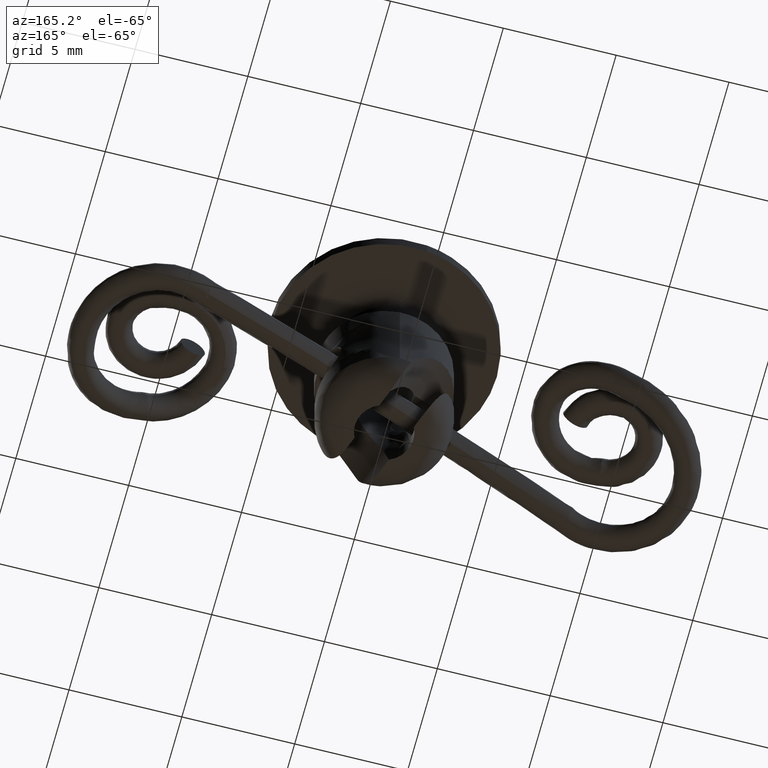
[diagram: clean part render]
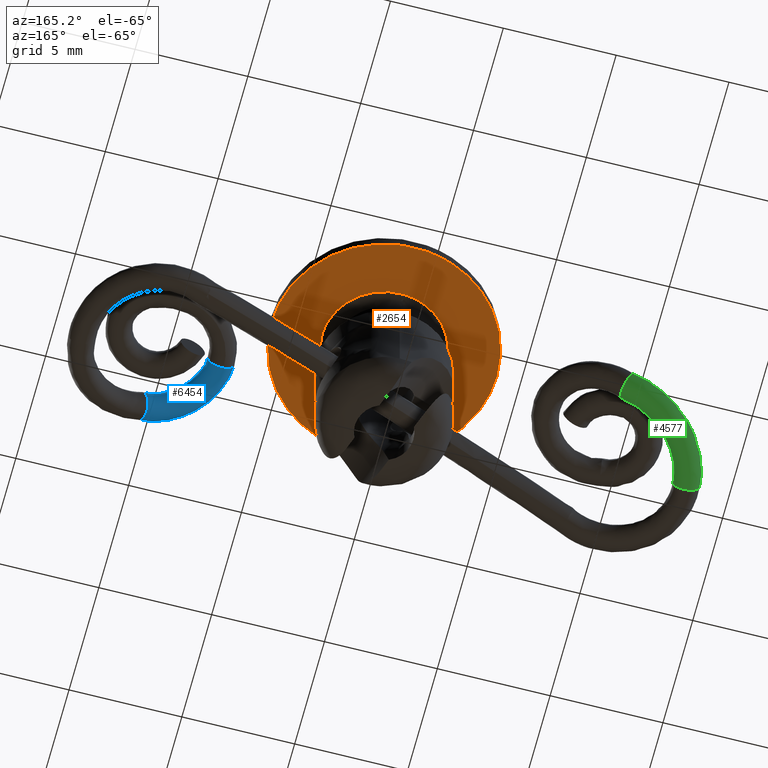
[diagram: same view with three faces highlighted in distinct colors, each labeled with its STEP entity id]
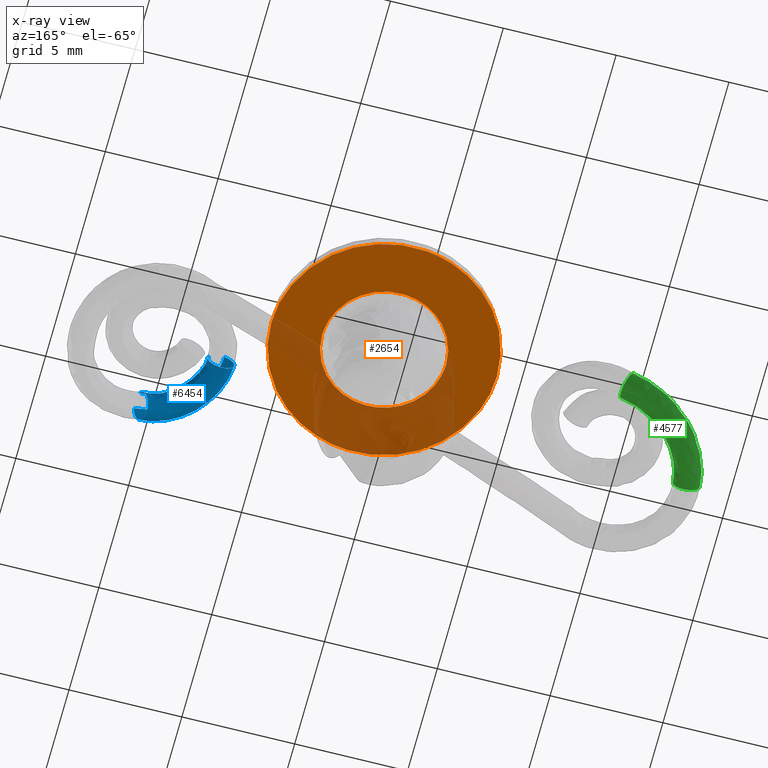
[diagram: x-ray of the same camera — body ghosted, the three highlighted faces saturated]
A machine part, auxiliary view with three faces highlighted in distinct colors.
The next image is the same camera in x-ray (body ghosted, the three faces saturated) — at least one of them is partly hidden behind the body in this view.
Their STEP definitions:

[orange] entity #2654 — the highlighted face is a freeform B-spline surface patch.
#66=CARTESIAN_POINT('',(-0.590168419711069,4.965047959120641,5.857710000000045));
#67=VERTEX_POINT('',#66);
#68=CARTESIAN_POINT('',(5.0,0.0,5.857710000000171));
#69=VERTEX_POINT('',#68);
#70=CARTESIAN_POINT('',(-0.590168419711069,4.965047959120641,5.857710000000045));
#71=CARTESIAN_POINT('',(-0.296119206918094,5.0,5.857710000000171));
#72=CARTESIAN_POINT('',(0.0,5.0,5.857710000000171));
#73=CARTESIAN_POINT('',(5.000000000000001,5.000000000000001,5.857710000000171));
#74=CARTESIAN_POINT('',(5.0,0.0,5.857710000000171));
#82=(BOUNDED_CURVE()B_SPLINE_CURVE(2,(#70,#71,#72,#73,#74),.UNSPECIFIED.,.F.,.U.)B_SPLINE_CURVE_WITH_KNOTS((3,2,3),(0.229562567243396,0.250000000000000,0.500000000000000),.UNSPECIFIED.)CURVE()GEOMETRIC_REPRESENTATION_ITEM()RATIONAL_B_SPLINE_CURVE((0.956026937898198,0.976056058142539,1.0,0.707106781186548,1.0))REPRESENTATION_ITEM(''));
#83=EDGE_CURVE('',#67,#69,#82,.T.);
#124=CARTESIAN_POINT('',(0.305236035703594,-4.990674399563991,5.857710000000555));
#125=VERTEX_POINT('',#124);
#131=CARTESIAN_POINT('',(5.0,0.0,5.857710000000171));
#132=CARTESIAN_POINT('',(5.000000000000001,-4.703536624932003,5.857710000000171));
#133=CARTESIAN_POINT('',(0.305236035703594,-4.990674399563991,5.857710000000555));
#141=(BOUNDED_CURVE()B_SPLINE_CURVE(2,(#131,#132,#133),.UNSPECIFIED.,.F.,.U.)B_SPLINE_CURVE_WITH_KNOTS((3,3),(0.500000000000000,0.739333192571951),.UNSPECIFIED.)CURVE()GEOMETRIC_REPRESENTATION_ITEM()RATIONAL_B_SPLINE_CURVE((1.0,0.719603723434806,0.976072535314697))REPRESENTATION_ITEM(''));
#142=EDGE_CURVE('',#69,#125,#141,.T.);
#165=CARTESIAN_POINT('',(-5.0,0.0,5.857710000000171));
#166=VERTEX_POINT('',#165);
#167=CARTESIAN_POINT('',(-5.0,0.0,5.857710000000171));
#168=CARTESIAN_POINT('',(-4.999999999999999,4.440875109964886,5.857710000000172));
#169=CARTESIAN_POINT('',(-0.590168419711069,4.965047959120641,5.857710000000045));
#177=(BOUNDED_CURVE()B_SPLINE_CURVE(2,(#167,#168,#169),.UNSPECIFIED.,.F.,.U.)B_SPLINE_CURVE_WITH_KNOTS((3,3),(0.0,0.229562567243396),.UNSPECIFIED.)CURVE()GEOMETRIC_REPRESENTATION_ITEM()RATIONAL_B_SPLINE_CURVE((1.0,0.731050723044008,0.956026937898198))REPRESENTATION_ITEM(''));
#178=EDGE_CURVE('',#166,#67,#177,.T.);
#180=CARTESIAN_POINT('',(0.305236035703594,-4.990674399563991,5.857710000000555));
#181=CARTESIAN_POINT('',(0.152760476168180,-5.000000000000001,5.857710000000171));
#182=CARTESIAN_POINT('',(0.0,-5.0,5.857710000000171));
#183=CARTESIAN_POINT('',(-5.000000000000001,-5.000000000000001,5.857710000000171));
#184=CARTESIAN_POINT('',(-5.0,0.0,5.857710000000171));
#192=(BOUNDED_CURVE()B_SPLINE_CURVE(2,(#180,#181,#182,#183,#184),.UNSPECIFIED.,.F.,.U.)B_SPLINE_CURVE_WITH_KNOTS((3,2,3),(0.739333192571951,0.750000000000000,1.0),.UNSPECIFIED.)CURVE()GEOMETRIC_REPRESENTATION_ITEM()RATIONAL_B_SPLINE_CURVE((0.976072535314697,0.987503057751742,1.0,0.707106781186548,1.0))REPRESENTATION_ITEM(''));
#193=EDGE_CURVE('',#125,#166,#192,.T.);
#1390=CARTESIAN_POINT('',(-0.191766443673523,2.743305629159120,5.857710000000170));
#1391=VERTEX_POINT('',#1390);
#1392=CARTESIAN_POINT('',(2.750000026179955,0.0,5.857710000000171));
#1393=VERTEX_POINT('',#1392);
#1394=CARTESIAN_POINT('',(-0.191766443673523,2.743305629159120,5.857710000000170));
#1395=CARTESIAN_POINT('',(-0.096000069586078,2.750000026179955,5.857710000000171));
#1396=CARTESIAN_POINT('',(0.0,2.750000026179955,5.857710000000171));
#1397=CARTESIAN_POINT('',(2.750000026179956,2.750000026179956,5.857710000000171));
#1398=CARTESIAN_POINT('',(2.750000026179955,0.0,5.857710000000171));
#1406=(BOUNDED_CURVE()B_SPLINE_CURVE(2,(#1394,#1395,#1396,#1397,#1398),.UNSPECIFIED.,.F.,.U.)B_SPLINE_CURVE_WITH_KNOTS((3,2,3),(0.237833686533048,0.250000000000000,0.500000000000000),.UNSPECIFIED.)CURVE()GEOMETRIC_REPRESENTATION_ITEM()RATIONAL_B_SPLINE_CURVE((0.972879876382654,0.985746277150284,1.0,0.707106781186548,1.0))REPRESENTATION_ITEM(''));
#1407=EDGE_CURVE('',#1391,#1393,#1406,.T.);
#1409=CARTESIAN_POINT('',(-2.749782897739931,-0.034556610018134,5.857710000000170));
#1410=VERTEX_POINT('',#1409);
#1411=CARTESIAN_POINT('',(2.750000026179955,0.0,5.857710000000171));
#1412=CARTESIAN_POINT('',(2.750000026179956,-2.750000026179956,5.857710000000171));
#1413=CARTESIAN_POINT('',(0.0,-2.750000026179955,5.857710000000171));
#1414=CARTESIAN_POINT('',(-2.715657833078554,-2.750000026179955,5.857710000000170));
#1415=CARTESIAN_POINT('',(-2.749782897739931,-0.034556610018134,5.857710000000170));
#1423=(BOUNDED_CURVE()B_SPLINE_CURVE(2,(#1411,#1412,#1413,#1414,#1415),.UNSPECIFIED.,.F.,.U.)B_SPLINE_CURVE_WITH_KNOTS((3,2,3),(0.500000000000000,0.750000000000000,0.997784295920460),.UNSPECIFIED.)CURVE()GEOMETRIC_REPRESENTATION_ITEM()RATIONAL_B_SPLINE_CURVE((1.0,0.707106781186548,1.0,0.709702639985725,0.994854295641094))REPRESENTATION_ITEM(''));
#1424=EDGE_CURVE('',#1393,#1410,#1423,.T.);
#1476=CARTESIAN_POINT('',(-2.750000026179955,0.0,5.857710000000171));
#1477=VERTEX_POINT('',#1476);
#1478=CARTESIAN_POINT('',(-2.750000026179955,0.0,5.857710000000171));
#1479=CARTESIAN_POINT('',(-2.750000026179955,2.564476354365790,5.857710000000171));
#1480=CARTESIAN_POINT('',(-0.191766443673522,2.743305629159120,5.857710000000171));
#1488=(BOUNDED_CURVE()B_SPLINE_CURVE(2,(#1478,#1479,#1480),.UNSPECIFIED.,.F.,.U.)B_SPLINE_CURVE_WITH_KNOTS((3,3),(0.0,0.237833686533048),.UNSPECIFIED.)CURVE()GEOMETRIC_REPRESENTATION_ITEM()RATIONAL_B_SPLINE_CURVE((1.0,0.721360504036264,0.972879876382654))REPRESENTATION_ITEM(''));
#1489=EDGE_CURVE('',#1477,#1391,#1488,.T.);
#1495=CARTESIAN_POINT('',(-2.749782897739931,-0.034556610018134,5.857710000000170));
#1496=CARTESIAN_POINT('',(-2.750000026179955,-0.017278987152109,5.857710000000171));
#1497=CARTESIAN_POINT('',(-2.750000026179955,0.0,5.857710000000171));
#1505=(BOUNDED_CURVE()B_SPLINE_CURVE(2,(#1495,#1496,#1497),.UNSPECIFIED.,.F.,.U.)B_SPLINE_CURVE_WITH_KNOTS((3,3),(0.997784295920460,1.0),.UNSPECIFIED.)CURVE()GEOMETRIC_REPRESENTATION_ITEM()RATIONAL_B_SPLINE_CURVE((0.994854295641093,0.997404141200822,1.0))REPRESENTATION_ITEM(''));
#1506=EDGE_CURVE('',#1410,#1477,#1505,.T.);
#2637=CARTESIAN_POINT('',(5.499499980618060,-5.499378285062300,5.857710000000171));
#2638=CARTESIAN_POINT('',(-5.499500248838961,-5.499378285062300,5.857710000000171));
#2639=CARTESIAN_POINT('',(5.499499980618060,5.499409041059004,5.857710000000171));
#2640=CARTESIAN_POINT('',(-5.499500248838961,5.499409041059004,5.857710000000171));
#2641=B_SPLINE_SURFACE_WITH_KNOTS('',1,1,((#2637,#2639),(#2638,#2640)),.UNSPECIFIED.,.F.,.F.,.U.,(2,2),(2,2),(0.0,10.999000229457019),(0.0,10.998787326121301),.UNSPECIFIED.);
#2642=ORIENTED_EDGE('',*,*,#178,.T.);
#2643=ORIENTED_EDGE('',*,*,#83,.T.);
#2644=ORIENTED_EDGE('',*,*,#142,.T.);
#2645=ORIENTED_EDGE('',*,*,#193,.T.);
#2646=EDGE_LOOP('',(#2642,#2643,#2644,#2645));
#2647=FACE_OUTER_BOUND('',#2646,.T.);
#2648=ORIENTED_EDGE('',*,*,#1424,.F.);
#2649=ORIENTED_EDGE('',*,*,#1407,.F.);
#2650=ORIENTED_EDGE('',*,*,#1489,.F.);
#2651=ORIENTED_EDGE('',*,*,#1506,.F.);
#2652=EDGE_LOOP('',(#2648,#2649,#2650,#2651));
#2653=FACE_BOUND('',#2652,.T.);
#2654=ADVANCED_FACE('',(#2647,#2653),#2641,.T.);

[blue] entity #6454 — the highlighted face is a freeform B-spline surface patch.
#5883=CARTESIAN_POINT('',(9.709690257926699,-3.113241212461730,-0.027119098099457));
#5884=VERTEX_POINT('',#5883);
#5885=CARTESIAN_POINT('',(9.914070001445218,-2.529247990406181,0.556763953880160));
#5886=VERTEX_POINT('',#5885);
#5887=CARTESIAN_POINT('',(9.709690257926699,-3.113241212461730,-0.027119098099457));
#5888=CARTESIAN_POINT('',(9.708252638493017,-3.093883079382346,-0.026488546241501));
#5889=CARTESIAN_POINT('',(9.707133013310337,-3.074076543117455,-0.025042437453134));
#5890=CARTESIAN_POINT('',(9.705654252808358,-3.035052450369464,-0.020535164743825));
#5891=CARTESIAN_POINT('',(9.705282105169207,-3.015727631340078,-0.017482022210139));
#5892=CARTESIAN_POINT('',(9.705280533310841,-2.958321569796435,-0.005895408018914));
#5893=CARTESIAN_POINT('',(9.706766162364847,-2.920631780649223,0.005101392193071));
#5894=CARTESIAN_POINT('',(9.713011157260361,-2.847678183517197,0.034069307613187));
#5895=CARTESIAN_POINT('',(9.717688877218045,-2.813229160386781,0.051689762974138));
#5896=CARTESIAN_POINT('',(9.730329412044315,-2.748614310017145,0.093555767359873));
#5897=CARTESIAN_POINT('',(9.738442476940858,-2.718275105092329,0.118178883542760));
#5898=CARTESIAN_POINT('',(9.757171595891109,-2.664994679344653,0.171638040425786));
#5899=CARTESIAN_POINT('',(9.767821946576232,-2.641602991835593,0.200643229694372));
#5900=CARTESIAN_POINT('',(9.785595646833487,-2.611058466559599,0.247333409164010));
#5901=CARTESIAN_POINT('',(9.791861844891972,-2.601592025058198,0.263531312820993));
#5902=CARTESIAN_POINT('',(9.804769400101435,-2.584494622344534,0.296411836202534));
#5903=CARTESIAN_POINT('',(9.811407176403494,-2.576849434904050,0.313089164399503));
#5904=CARTESIAN_POINT('',(9.831839706967806,-2.556463368966916,0.363790092113659));
#5905=CARTESIAN_POINT('',(9.846147905725587,-2.546243716167218,0.398475216970098));
#5906=CARTESIAN_POINT('',(9.868623258441222,-2.535888731442343,0.451808122219600));
#5907=CARTESIAN_POINT('',(9.876300061496405,-2.533279371067430,0.469837505436147));
#5908=CARTESIAN_POINT('',(9.891708065389272,-2.529842178155950,0.505660562164382));
#5909=CARTESIAN_POINT('',(9.899473683168392,-2.528994461510020,0.523536718596425));
#5910=CARTESIAN_POINT('',(9.909550452265002,-2.529020180719951,0.546505746335767));
#5911=CARTESIAN_POINT('',(9.911807160865051,-2.529097811972940,0.551635184392930));
#5912=CARTESIAN_POINT('',(9.914070001445218,-2.529247990406181,0.556763953880160));
#5913=B_SPLINE_CURVE_WITH_KNOTS('',3,(#5887,#5888,#5889,#5890,#5891,#5892,#5893,#5894,#5895,#5896,#5897,#5898,#5899,#5900,#5901,#5902,#5903,#5904,#5905,#5906,#5907,#5908,#5909,#5910,#5911,#5912),.UNSPECIFIED.,.F.,.U.,(4,2,2,2,2,2,2,2,2,2,2,2,4),(0.0,0.031250000000000,0.062500000000000,0.124999999999999,0.187499999999999,0.249999999999998,0.312499999999997,0.343749999999996,0.374999999999995,0.437499999999994,0.468749999999994,0.499999999999994,0.508982362627141),.UNSPECIFIED.);
#5914=EDGE_CURVE('',#5884,#5886,#5913,.T.);
#5942=CARTESIAN_POINT('',(10.164121627010800,-3.494023630468900,0.932988918907501));
#5943=VERTEX_POINT('',#5942);
#5963=CARTESIAN_POINT('',(9.709690257926699,-3.113241212461730,-0.027119098099457));
#5964=CARTESIAN_POINT('',(9.711128391150696,-3.132606637510235,-0.027749874737828));
#5965=CARTESIAN_POINT('',(9.712946495663761,-3.152381974753228,-0.027593828035913));
#5966=CARTESIAN_POINT('',(9.717231946058854,-3.191407012593223,-0.025677893186520));
#5967=CARTESIAN_POINT('',(9.719698116716849,-3.210713380392058,-0.023933847809841));
#5968=CARTESIAN_POINT('',(9.728043063583481,-3.268029273225716,-0.016401612971973));
#5969=CARTESIAN_POINT('',(9.734856716758950,-3.305442886560354,-0.008341060980857));
#5970=CARTESIAN_POINT('',(9.747064990035026,-3.360297496617174,0.008574856931801));
#5971=CARTESIAN_POINT('',(9.751493012456004,-3.378453144250671,0.015063729141349));
#5972=CARTESIAN_POINT('',(9.760901419882950,-3.413682688157925,0.029528399232746));
#5973=CARTESIAN_POINT('',(9.770873893596356,-3.447918671594106,0.045488987751850));
#5974=CARTESIAN_POINT('',(9.782004709599125,-3.480117219427086,0.064516183025746));
#5975=CARTESIAN_POINT('',(9.793749388298979,-3.511237708915334,0.085165425535459));
#5976=CARTESIAN_POINT('',(9.799970344754689,-3.526344872572934,0.096379265909823));
#5977=CARTESIAN_POINT('',(9.819235608753736,-3.569042732823650,0.131922233542957));
#5978=CARTESIAN_POINT('',(9.832901101479777,-3.594133150109461,0.158170894408212));
#5979=CARTESIAN_POINT('',(9.861892166666470,-3.637530009442953,0.215796901113177));
#5980=CARTESIAN_POINT('',(9.877393835066455,-3.655983868160647,0.247547137392130));
#5981=CARTESIAN_POINT('',(9.908488922725452,-3.684739992265865,0.312850488199275));
#5982=CARTESIAN_POINT('',(9.924213610095922,-3.695334006952154,0.346645918419766));
#5983=CARTESIAN_POINT('',(9.955993517860955,-3.709531585023273,0.416348159062972));
#5984=CARTESIAN_POINT('',(9.972126877101964,-3.713060732444380,0.452447610324552));
#5985=CARTESIAN_POINT('',(10.003412941577750,-3.713039149868219,0.523782750407598));
#5986=CARTESIAN_POINT('',(10.018730895429300,-3.709597191381771,0.559374127092030));
#5987=CARTESIAN_POINT('',(10.041215173723380,-3.699243059375994,0.612646272226862));
#5988=CARTESIAN_POINT('',(10.048647361428429,-3.694896654345482,0.630434882800489));
#5989=CARTESIAN_POINT('',(10.063077070763470,-3.684567949638937,0.665339865986648));
#5990=CARTESIAN_POINT('',(10.077133348812620,-3.672585869549051,0.699715608727982));
#5991=CARTESIAN_POINT('',(10.090433239860969,-3.657258963318564,0.733021055909899));
#5992=CARTESIAN_POINT('',(10.103336493638039,-3.640180669141888,0.765766320429966));
#5993=CARTESIAN_POINT('',(10.109620495480790,-3.630708716794741,0.781939991512683));
#5994=CARTESIAN_POINT('',(10.127537995807550,-3.599966466195301,0.828791044267618));
#5995=CARTESIAN_POINT('',(10.138271277441939,-3.576421409930441,0.857866262919735));
#5996=CARTESIAN_POINT('',(10.152418245313070,-3.536200471339861,0.898010559242018));
#5997=CARTESIAN_POINT('',(10.156829913569259,-3.521876912320541,0.910882531539832));
#5998=CARTESIAN_POINT('',(10.161959801838330,-3.502651591895676,0.926361245335151));
#5999=CARTESIAN_POINT('',(10.163057862132050,-3.498360136164814,0.929709544698111));
#6000=CARTESIAN_POINT('',(10.164121627010800,-3.494023630468900,0.932988918907501));
#6001=B_SPLINE_CURVE_WITH_KNOTS('',3,(#5963,#5964,#5965,#5966,#5967,#5968,#5969,#5970,#5971,#5972,#5973,#5974,#5975,#5976,#5977,#5978,#5979,#5980,#5981,#5982,#5983,#5984,#5985,#5986,#5987,#5988,#5989,#5990,#5991,#5992,#5993,#5994,#5995,#5996,#5997,#5998,#5999,#6000),.UNSPECIFIED.,.F.,.U.,(4,2,2,2,2,1,2,2,2,2,2,2,2,2,1,2,2,2,2,4),(0.0,0.031250000000000,0.062499999999999,0.124999999999998,0.156249999999998,0.187499999999997,0.218749999999996,0.249999999999996,0.312499999999996,0.374999999999996,0.437499999999997,0.499999999999997,0.562499999999997,0.593749999999998,0.624999999999998,0.656249999999999,0.687500000000000,0.750000000000000,0.781250000000000,0.790107247228649),.UNSPECIFIED.);
#6002=EDGE_CURVE('',#5884,#5943,#6001,.T.);
#6098=CARTESIAN_POINT('',(10.111693739077550,-2.758228570130640,0.961104730158304));
#6099=VERTEX_POINT('',#6098);
#6100=CARTESIAN_POINT('',(9.914070001445218,-2.529247990406181,0.556763953880160));
#6101=CARTESIAN_POINT('',(9.927551908938234,-2.530142763085917,0.587321690009056));
#6102=CARTESIAN_POINT('',(9.941251492513636,-2.533612867978154,0.617855693075597));
#6103=CARTESIAN_POINT('',(9.971047844320097,-2.547020126043236,0.683083353239183));
#6104=CARTESIAN_POINT('',(9.986902568450480,-2.557788826619746,0.717057244291953));
#6105=CARTESIAN_POINT('',(10.018191341687400,-2.586902051800101,0.782516160915845));
#6106=CARTESIAN_POINT('',(10.033688003868271,-2.605455038238025,0.814101848967338));
#6107=CARTESIAN_POINT('',(10.062706734423340,-2.649028047530694,0.871465402049340));
#6108=CARTESIAN_POINT('',(10.076410533853229,-2.674226937967941,0.897621490646480));
#6109=CARTESIAN_POINT('',(10.095755856797510,-2.717152343861277,0.933060818328562));
#6110=CARTESIAN_POINT('',(10.101970164498690,-2.732261032109645,0.944178543308587));
#6111=CARTESIAN_POINT('',(10.109133225102850,-2.751244710444195,0.956676988968871));
#6112=CARTESIAN_POINT('',(10.110421095410350,-2.754724129803865,0.958910743328529));
#6113=CARTESIAN_POINT('',(10.111693739077550,-2.758228570130640,0.961104730158304));
#6114=B_SPLINE_CURVE_WITH_KNOTS('',3,(#6100,#6101,#6102,#6103,#6104,#6105,#6106,#6107,#6108,#6109,#6110,#6111,#6112,#6113),.UNSPECIFIED.,.F.,.U.,(4,2,2,2,2,2,4),(0.508982362627141,0.562499999999996,0.624999999999997,0.687499999999998,0.750000000000000,0.781250000000000,0.788200528211686),.UNSPECIFIED.);
#6115=EDGE_CURVE('',#5886,#6099,#6114,.T.);
#6157=CARTESIAN_POINT('',(10.164210862793640,-2.760691492954004,0.947458500063026));
#6158=CARTESIAN_POINT('',(10.144407367273860,-2.716461541659900,0.922395649417399));
#6159=CARTESIAN_POINT('',(10.122813221443090,-2.676447477011221,0.891335478309320));
#6160=CARTESIAN_POINT('',(9.968797873706247,-2.450902982013924,0.642625129971902));
#6161=CARTESIAN_POINT('',(9.815191538089184,-2.496852617732309,0.271542248053378));
#6162=CARTESIAN_POINT('',(9.739517468097585,-2.981501795333882,-0.121104524604989));
#6163=CARTESIAN_POINT('',(9.824271049752873,-3.376514719767882,-0.107274954355828));
#6164=CARTESIAN_POINT('',(10.088353926584960,-3.763247673015930,0.319175894023213));
#6165=CARTESIAN_POINT('',(10.244801174744040,-3.712667136958499,0.698839123089995));
#6166=CARTESIAN_POINT('',(10.279515981731400,-3.460184429848956,0.892657538359520));
#6167=CARTESIAN_POINT('',(10.136988755403740,-2.766055803941240,0.959398346249343));
#6168=CARTESIAN_POINT('',(10.117101746156770,-2.721842301012401,0.934372125429720));
#6169=CARTESIAN_POINT('',(10.095432046916940,-2.681843116903881,0.903345092684889));
#6170=CARTESIAN_POINT('',(9.940990832549547,-2.456382497935918,0.654821533047989));
#6171=CARTESIAN_POINT('',(9.787471257800158,-2.502315045355923,0.283700597080227));
#6172=CARTESIAN_POINT('',(9.712712288641480,-2.986783989494239,-0.109347546531302));
#6173=CARTESIAN_POINT('',(9.798211722429841,-3.381650015134400,-0.095845113326275));
#6174=CARTESIAN_POINT('',(10.063024817304830,-3.768239149201524,0.330285455252610));
#6175=CARTESIAN_POINT('',(10.219376560660541,-3.717677423607022,0.709990573532664));
#6176=CARTESIAN_POINT('',(10.253614636962739,-3.465288610863597,0.904018086906595));
#6177=CARTESIAN_POINT('',(10.110070099706840,-2.771359646428574,0.971205095960526));
#6178=CARTESIAN_POINT('',(10.090138513368871,-2.727154931711208,0.946198427029458));
#6179=CARTESIAN_POINT('',(10.068428486015650,-2.687163698148968,0.915189082535723));
#6180=CARTESIAN_POINT('',(9.913759956998341,-2.461747893514419,0.666765225023902));
#6181=CARTESIAN_POINT('',(9.760286692638847,-2.507671311260183,0.295623976928049));
#6182=CARTESIAN_POINT('',(9.686016176634436,-2.992043959055854,-0.097638406361827));
#6183=CARTESIAN_POINT('',(9.771913723676573,-3.386831498247611,-0.084310588991891));
#6184=CARTESIAN_POINT('',(10.037116586725171,-3.773343790804996,0.341649023974538));
#6185=CARTESIAN_POINT('',(10.193417352441600,-3.722792115008908,0.721376501477671));
#6186=CARTESIAN_POINT('',(10.227400964321200,-3.470453468788779,0.915515625096258));
#6187=CARTESIAN_POINT('',(9.921274936078371,-2.808543052694354,1.054012249064532));
#6188=CARTESIAN_POINT('',(9.902899339013571,-2.764032047492250,1.028323110098245));
#6189=CARTESIAN_POINT('',(9.882596987985544,-2.723763718623548,0.996696346880738));
#6190=CARTESIAN_POINT('',(9.735863010184991,-2.496786033195725,0.744792328199493));
#6191=CARTESIAN_POINT('',(9.580773258775402,-2.543027666599070,0.374360084974612));
#6192=CARTESIAN_POINT('',(9.489453008260059,-3.030756516436060,-0.011424140777122));
#6193=CARTESIAN_POINT('',(9.561454182892096,-3.428279511601058,0.007998742883957));
#6194=CARTESIAN_POINT('',(9.813051959171281,-3.817469904423519,0.439925661799499));
#6195=CARTESIAN_POINT('',(9.971132124876506,-3.766567943723217,0.818872679440889));
#6196=CARTESIAN_POINT('',(10.013997961925901,-3.512480851821420,1.009115984091414));
#6197=CARTESIAN_POINT('',(9.775562123894490,-2.819951152501991,1.117923119003228));
#6198=CARTESIAN_POINT('',(9.761257781494470,-2.774940807217421,1.090448293360055));
#6199=CARTESIAN_POINT('',(9.744638623415922,-2.734220734991895,1.057206050611100));
#6200=CARTESIAN_POINT('',(9.618665442611206,-2.504696747081620,0.796196171046881));
#6201=CARTESIAN_POINT('',(9.459346141175081,-2.551457177653465,0.427619044181468));
#6202=CARTESIAN_POINT('',(9.323415160286379,-3.044657612012035,0.061401461499834));
#6203=CARTESIAN_POINT('',(9.359056397156746,-3.446640182056352,0.096772120915356));
#6204=CARTESIAN_POINT('',(9.575056388909871,-3.840196627257780,0.544312528740133));
#6205=CARTESIAN_POINT('',(9.737792367333118,-3.788723587008255,0.921217467606026));
#6206=CARTESIAN_POINT('',(9.803898598578769,-3.531786021032385,1.101267339101695));
#6207=CARTESIAN_POINT('',(9.463940383172949,-2.813082820744366,1.254603046065304));
#6208=CARTESIAN_POINT('',(9.455071330040875,-2.768191785157095,1.224744256649315));
#6209=CARTESIAN_POINT('',(9.443369383038331,-2.727579651500164,1.189345283597594));
#6210=CARTESIAN_POINT('',(9.345112701948562,-2.498664083673373,0.916178713198322));
#6211=CARTESIAN_POINT('',(9.180146773812160,-2.545300621063606,0.550078244487994));
#6212=CARTESIAN_POINT('',(8.984658656345046,-3.037193813788593,0.209982924857609));
#6213=CARTESIAN_POINT('',(8.971757905480857,-3.438110871060295,0.266644510020581));
#6214=CARTESIAN_POINT('',(9.140233421903250,-3.830624080444641,0.735029554059818));
#6215=CARTESIAN_POINT('',(9.309185105110601,-3.779287423606303,1.109208232317125));
#6216=CARTESIAN_POINT('',(9.406318206160893,-3.523030879381399,1.275649456700922));
#6217=CARTESIAN_POINT('',(8.997214382135763,-2.752257035592036,1.459313011525881));
#6218=CARTESIAN_POINT('',(8.996483957314911,-2.708424887064457,1.425884551003514));
#6219=CARTESIAN_POINT('',(8.992144884749525,-2.668770711759203,1.387256159045656));
#6220=CARTESIAN_POINT('',(8.935390001570145,-2.445254816224247,1.095886549608423));
#6221=CARTESIAN_POINT('',(8.761968987666389,-2.490791377793314,0.733494552917698));
#6222=CARTESIAN_POINT('',(8.477301906044001,-2.971081964534218,0.432513880063487));
#6223=CARTESIAN_POINT('',(8.391715931291042,-3.362542258699751,0.521055818236152));
#6224=CARTESIAN_POINT('',(8.489029822282372,-3.745796846135522,1.020652952134892));
#6225=CARTESIAN_POINT('',(8.667288710792990,-3.695671028883530,1.390749411548452));
#6226=CARTESIAN_POINT('',(8.810880460745807,-3.445458977395580,1.536813480189962));
#6227=CARTESIAN_POINT('',(8.570724466606473,-2.543490697868198,1.646375090096371));
#6228=CARTESIAN_POINT('',(8.577805046122357,-2.503387638794473,1.609520657109594));
#6229=CARTESIAN_POINT('',(8.580532451833637,-2.467107107154742,1.567792848104650));
#6230=CARTESIAN_POINT('',(8.563608686804454,-2.262607207816025,1.258952973881338));
#6231=CARTESIAN_POINT('',(8.382072926986526,-2.304269764279399,0.900120173275808));
#6232=CARTESIAN_POINT('',(8.011816779603830,-2.743699019909507,0.636679587446400));
#6233=CARTESIAN_POINT('',(7.856471543538356,-3.101855257171692,0.755818526733199));
#6234=CARTESIAN_POINT('',(7.885488463000054,-3.452503806637131,1.285371289098987));
#6235=CARTESIAN_POINT('',(8.072679915178242,-3.406642430147699,1.651549850654232));
#6236=CARTESIAN_POINT('',(8.260860120914709,-3.177717488868167,1.778057046048525));
#6237=CARTESIAN_POINT('',(8.088910816143919,-2.161616578234678,1.857702626007700));
#6238=CARTESIAN_POINT('',(8.105371124323412,-2.128947223469035,1.816734164819186));
#6239=CARTESIAN_POINT('',(8.116584205090867,-2.099391836071118,1.771284467074819));
#6240=CARTESIAN_POINT('',(8.147491039593863,-1.932799104892819,1.441465687977015));
#6241=CARTESIAN_POINT('',(7.956210782212581,-1.966739013575575,1.086906906292600));
#6242=CARTESIAN_POINT('',(7.483176232554341,-2.324713680003430,0.868545795643921));
#6243=CARTESIAN_POINT('',(7.244061609183600,-2.616480349754709,1.024426695618170));
#6244=CARTESIAN_POINT('',(7.191065136950251,-2.902130854857123,1.589951224167169));
#6245=CARTESIAN_POINT('',(7.388983151721958,-2.864770436755140,1.951425024785740));
#6246=CARTESIAN_POINT('',(7.630706764505471,-2.678280058920304,2.054447629686167));
#6247=CARTESIAN_POINT('',(7.892858020145870,-1.920602131750371,1.943693037957650));
#6248=CARTESIAN_POINT('',(7.913457644640644,-1.892886702471211,1.900909037677569));
#6249=CARTESIAN_POINT('',(7.928415491554841,-1.867813045673739,1.853816853877453));
#6250=CARTESIAN_POINT('',(7.980430179723199,-1.726482179892291,1.514739991910475));
#6251=CARTESIAN_POINT('',(7.784849617532875,-1.755275585501314,1.162067360230776));
#6252=CARTESIAN_POINT('',(7.266458474021579,-2.058967727597114,0.963600034673206));
#6253=CARTESIAN_POINT('',(6.990376036850598,-2.306491440979998,1.135695329966076));
#6254=CARTESIAN_POINT('',(6.901186694625286,-2.548826343058844,1.717094356935021));
#6255=CARTESIAN_POINT('',(7.103838404311826,-2.517131105815305,2.076491918988570));
#6256=CARTESIAN_POINT('',(7.369190974865484,-2.358919738380454,2.169150663469197));
#6257=CARTESIAN_POINT('',(7.654041394067283,-1.449029199785928,2.048440026913335));
#6258=CARTESIAN_POINT('',(7.679922658059810,-1.431741375196015,2.003339454947180));
#6259=CARTESIAN_POINT('',(7.699658709925582,-1.416101391045440,1.954151510104351));
#6260=CARTESIAN_POINT('',(7.778606355322587,-1.327944658363114,1.603261625653712));
#6261=CARTESIAN_POINT('',(7.577538702102190,-1.345905064272363,1.252995678437090));
#6262=CARTESIAN_POINT('',(7.001273889574959,-1.535336909415359,1.079912232841047));
#6263=CARTESIAN_POINT('',(6.678021647612987,-1.689732829007552,1.272696602854149));
#6264=CARTESIAN_POINT('',(6.542651341897171,-1.840891976475254,1.874350990399033));
#6265=CARTESIAN_POINT('',(6.751343135967534,-1.821121513891277,2.231099320434703));
#6266=CARTESIAN_POINT('',(7.046845555129274,-1.722435161443237,2.310534086706661));
#6267=CARTESIAN_POINT('',(7.585247175731020,-1.231471992790902,2.078613752028721));
#6268=CARTESIAN_POINT('',(7.612743223279289,-1.219197044512010,2.032804922358493));
#6269=CARTESIAN_POINT('',(7.633940140666188,-1.208092122196515,1.982976229561374));
#6270=CARTESIAN_POINT('',(7.721122136648603,-1.145497858568867,1.628474689406474));
#6271=CARTESIAN_POINT('',(7.518376870449348,-1.158250492636922,1.278944557409638));
#6272=CARTESIAN_POINT('',(6.924418008966383,-1.292753816949156,1.113621871108235));
#6273=CARTESIAN_POINT('',(6.586744285034746,-1.402380283019595,1.312731624900009));
#6274=CARTESIAN_POINT('',(6.437254837461286,-1.509708393290331,1.920578787296710));
#6275=CARTESIAN_POINT('',(6.647793314532300,-1.495670553246674,2.276517146573360));
#6276=CARTESIAN_POINT('',(6.952513619511144,-1.425599748663249,2.351908870282728));
#6277=CARTESIAN_POINT('',(7.542298891841944,-0.935033656472349,2.097451232031757));
#6278=CARTESIAN_POINT('',(7.570801764166952,-0.929733047913073,2.051200800512035));
#6279=CARTESIAN_POINT('',(7.592909537050241,-0.924937688926812,2.000972598802224));
#6280=CARTESIAN_POINT('',(7.685225677445931,-0.897908101716504,1.644219179550924));
#6281=CARTESIAN_POINT('',(7.481434379054483,-0.903415228162771,1.295147846106894));
#6282=CARTESIAN_POINT('',(6.876443143397257,-0.961497302971476,1.134664052284505));
#6283=CARTESIAN_POINT('',(6.529777543444380,-1.008836692294287,1.337717718833548));
#6284=CARTESIAN_POINT('',(6.371484764929565,-1.055183343707577,1.949426096523628));
#6285=CARTESIAN_POINT('',(6.583174691038945,-1.049121228558745,2.304859420528315));
#6286=CARTESIAN_POINT('',(6.893642417080432,-1.018862817812934,2.377730276823795));
#6287=CARTESIAN_POINT('',(7.535002098238818,-0.859150297223388,2.100651667326044));
#6288=CARTESIAN_POINT('',(7.563720552614341,-0.856819304092543,2.054306679698409));
#6289=CARTESIAN_POINT('',(7.586023358269285,-0.854710504270533,2.003992934967935));
#6290=CARTESIAN_POINT('',(7.679438821535964,-0.842824057689518,1.646757343421884));
#6291=CARTESIAN_POINT('',(7.475423533328740,-0.845246105507862,1.297784253802724));
#6292=CARTESIAN_POINT('',(6.868070016474495,-0.870788648799942,1.138336576462301));
#6293=CARTESIAN_POINT('',(6.519479062827576,-0.891606721471719,1.342234719400834));
#6294=CARTESIAN_POINT('',(6.359301315315684,-0.911987979683610,1.954769860411169));
#6295=CARTESIAN_POINT('',(6.571237803529035,-0.909321863622021,2.310095040194830));
#6296=CARTESIAN_POINT('',(6.882936182258957,-0.896015238511021,2.382426121828628));
#6297=CARTESIAN_POINT('',(7.532138452516533,-0.765487038955912,2.101907686522752));
#6298=CARTESIAN_POINT('',(7.560871694760739,-0.763899900640919,2.055556212811039));
#6299=CARTESIAN_POINT('',(7.583187878605660,-0.762464053258581,2.005236600293466));
#6300=CARTESIAN_POINT('',(7.676678748585681,-0.754370790675981,1.647967934726119));
#6301=CARTESIAN_POINT('',(7.472648091080238,-0.756020061065285,1.299001586210879));
#6302=CARTESIAN_POINT('',(6.865132525456505,-0.773411821943879,1.139624984829241));
#6303=CARTESIAN_POINT('',(6.516409499528229,-0.787586606885754,1.343581055785688));
#6304=CARTESIAN_POINT('',(6.356102454863868,-0.801463830273181,1.956172907618986));
#6305=CARTESIAN_POINT('',(6.568055860856088,-0.799648373682871,2.311490667122031));
#6306=CARTESIAN_POINT('',(6.879838660295103,-0.790587977986995,2.383784721119824));
#6307=CARTESIAN_POINT('',(7.531736691852609,-0.755022411917242,2.102083902142735));
#6308=CARTESIAN_POINT('',(7.560471193437821,-0.753453162214779,2.055731876073420));
#6309=CARTESIAN_POINT('',(7.582788516578779,-0.752033498347657,2.005411763850987));
#6310=CARTESIAN_POINT('',(7.676285808281166,-0.744031456257935,1.648140281661979));
#6311=CARTESIAN_POINT('',(7.472253842102249,-0.745662142506711,1.299174507141974));
#6312=CARTESIAN_POINT('',(6.864724476644704,-0.762857889106039,1.139803958483983));
#6313=CARTESIAN_POINT('',(6.515990203482808,-0.776872912774054,1.343764962572077));
#6314=CARTESIAN_POINT('',(6.355672147724353,-0.790593723695692,1.956361643964231));
#6315=CARTESIAN_POINT('',(6.567626994254146,-0.788798724193782,2.311678771635332));
#6316=CARTESIAN_POINT('',(6.879416982840961,-0.779840444044634,2.383969672412187));
#6317=B_SPLINE_SURFACE_WITH_KNOTS('',3,3,((#6157,#6167,#6177,#6187,#6197,#6207,#6217,#6227,#6237,#6247,#6257,#6267,#6277,#6287,#6297,#6307),(#6158,#6168,#6178,#6188,#6198,#6208,#6218,#6228,#6238,#6248,#6258,#6268,#6278,#6288,#6298,#6308),(#6159,#6169,#6179,#6189,#6199,#6209,#6219,#6229,#6239,#6249,#6259,#6269,#6279,#6289,#6299,#6309),(#6160,#6170,#6180,#6190,#6200,#6210,#6220,#6230,#6240,#6250,#6260,#6270,#6280,#6290,#6300,#6310),(#6161,#6171,#6181,#6191,#6201,#6211,#6221,#6231,#6241,#6251,#6261,#6271,#6281,#6291,#6301,#6311),(#6162,#6172,#6182,#6192,#6202,#6212,#6222,#6232,#6242,#6252,#6262,#6272,#6282,#6292,#6302,#6312),(#6163,#6173,#6183,#6193,#6203,#6213,#6223,#6233,#6243,#6253,#6263,#6273,#6283,#6293,#6303,#6313),(#6164,#6174,#6184,#6194,#6204,#6214,#6224,#6234,#6244,#6254,#6264,#6274,#6284,#6294,#6304,#6314),(#6165,#6175,#6185,#6195,#6205,#6215,#6225,#6235,#6245,#6255,#6265,#6275,#6285,#6295,#6305,#6315),(#6166,#6176,#6186,#6196,#6206,#6216,#6226,#6236,#6246,#6256,#6266,#6276,#6286,#6296,#6306,#6316)),.UNSPECIFIED.,.F.,.F.,.U.,(4,2,2,2,4),(4,2,2,1,2,2,2,1,4),(0.0,0.166193596036157,1.111541739103562,2.056889882170966,3.017454372825641),(0.0,0.109084528104379,0.824869246307859,1.540653964511339,2.972223400918299,4.403792837325258,5.477469914630478,5.835362273732218,5.878101973014500),.UNSPECIFIED.);
#6318=CARTESIAN_POINT('',(7.540368746288643,-0.786739083575888,2.088912523456369));
#6319=VERTEX_POINT('',#6318);
#6320=CARTESIAN_POINT('',(6.910904343166408,-0.797286893741156,1.214682222147570));
#6321=VERTEX_POINT('',#6320);
#6322=CARTESIAN_POINT('',(7.540368746288643,-0.786739083575888,2.088912523456369));
#6323=CARTESIAN_POINT('',(7.553059577195446,-0.786210783236678,2.067416602202808));
#6324=CARTESIAN_POINT('',(7.564320900418523,-0.785715204422910,2.045091835904576));
#6325=CARTESIAN_POINT('',(7.581631738550490,-0.784896280894995,2.003839934855662));
#6326=CARTESIAN_POINT('',(7.588265794656983,-0.784559399437073,1.985231853878355));
#6327=CARTESIAN_POINT('',(7.599271236978646,-0.783946986901043,1.947845799091090));
#6328=CARTESIAN_POINT('',(7.603689032890067,-0.783669245297881,1.928953202445003));
#6329=CARTESIAN_POINT('',(7.610427252816617,-0.783169060808594,1.890782199299898));
#6330=CARTESIAN_POINT('',(7.612750185747188,-0.782946522306169,1.871504254705688));
#6331=CARTESIAN_POINT('',(7.615338946788064,-0.782555684767263,1.832569962728036));
#6332=CARTESIAN_POINT('',(7.615593847138323,-0.782386907748901,1.812817975850800));
#6333=CARTESIAN_POINT('',(7.613333145182327,-0.781970274057264,1.754207893205982));
#6334=CARTESIAN_POINT('',(7.607884881310437,-0.781807142226399,1.715703898702969));
#6335=CARTESIAN_POINT('',(7.594295281122649,-0.781720285581962,1.658730555372466));
#6336=CARTESIAN_POINT('',(7.588822258118327,-0.781718102206406,1.639788920051875));
#6337=CARTESIAN_POINT('',(7.576256361156191,-0.781765987692466,1.602751379675002));
#6338=CARTESIAN_POINT('',(7.569163911874689,-0.781815741608208,1.584618503777421));
#6339=CARTESIAN_POINT('',(7.545555814478868,-0.782039386547698,1.531330959880431));
#6340=CARTESIAN_POINT('',(7.526736959710892,-0.782286778342336,1.497274245776895));
#6341=CARTESIAN_POINT('',(7.482778017171059,-0.782983679482124,1.432174193304349));
#6342=CARTESIAN_POINT('',(7.458220038640469,-0.783424082595482,1.402007735371368));
#6343=CARTESIAN_POINT('',(7.404107386869240,-0.784486248962219,1.346626291811162));
#6344=CARTESIAN_POINT('',(7.374347205199375,-0.785112407045591,1.321245077005084));
#6345=CARTESIAN_POINT('',(7.309870172786613,-0.786555233795348,1.276614871800445));
#6346=CARTESIAN_POINT('',(7.275975882452904,-0.787353150011963,1.257893266708535));
#6347=CARTESIAN_POINT('',(7.222546474152975,-0.788669990118531,1.235427511640651));
#6348=CARTESIAN_POINT('',(7.204302388284105,-0.789129067802175,1.228881447059891));
#6349=CARTESIAN_POINT('',(7.166890194983531,-0.790090121990003,1.217794716504321));
#6350=CARTESIAN_POINT('',(7.147615461241227,-0.790595122822384,1.213254755663289));
#6351=CARTESIAN_POINT('',(7.089895470246233,-0.792136317732640,1.203029609656597));
#6352=CARTESIAN_POINT('',(7.051154487948990,-0.793208078766915,1.200529502516670));
#6353=CARTESIAN_POINT('',(6.992683600237871,-0.794876857366954,1.202723991138384));
#6354=CARTESIAN_POINT('',(6.973024289759960,-0.795446607762823,1.204473005438695));
#6355=CARTESIAN_POINT('',(6.939252455133513,-0.796439787319876,1.209167053163051));
#6356=CARTESIAN_POINT('',(6.925009462707720,-0.796863207567670,1.211680024925787));
#6357=CARTESIAN_POINT('',(6.910904343166408,-0.797286893741156,1.214682222147570));
#6358=B_SPLINE_CURVE_WITH_KNOTS('',3,(#6322,#6323,#6324,#6325,#6326,#6327,#6328,#6329,#6330,#6331,#6332,#6333,#6334,#6335,#6336,#6337,#6338,#6339,#6340,#6341,#6342,#6343,#6344,#6345,#6346,#6347,#6348,#6349,#6350,#6351,#6352,#6353,#6354,#6355,#6356,#6357),.UNSPECIFIED.,.F.,.U.,(4,2,2,2,2,2,2,2,2,2,2,2,2,2,2,2,2,4),(0.084808083003208,0.125000000000005,0.156250000000005,0.187500000000005,0.218750000000005,0.250000000000005,0.312500000000005,0.343750000000005,0.375000000000004,0.437500000000005,0.500000000000005,0.562500000000005,0.625000000000005,0.656250000000005,0.687500000000005,0.750000000000004,0.781250000000003,0.804444809290600),.UNSPECIFIED.);
#6359=EDGE_CURVE('',#6319,#6321,#6358,.T.);
#6360=ORIENTED_EDGE('',*,*,#6359,.F.);
#6361=CARTESIAN_POINT('',(10.111693739077550,-2.758228570130640,0.961104730158304));
#6362=CARTESIAN_POINT('',(10.100764897742650,-2.760381668114946,0.965898219561777));
#6363=CARTESIAN_POINT('',(10.090062287943139,-2.762489938986798,0.970592481752318));
#6364=CARTESIAN_POINT('',(9.916238849983412,-2.796724710825391,1.046833025690908));
#6365=CARTESIAN_POINT('',(9.771607115261237,-2.808000229070426,1.110269831032593));
#6366=CARTESIAN_POINT('',(9.461361313644883,-2.801191481509975,1.246346500294789));
#6367=CARTESIAN_POINT('',(9.306675021240064,-2.780940170380458,1.314193342747230));
#6368=CARTESIAN_POINT('',(8.855341618505275,-2.671381129509601,1.512152383807434));
#6369=CARTESIAN_POINT('',(8.572465353114694,-2.532835746442491,1.636224587219727));
#6370=CARTESIAN_POINT('',(8.093125838244816,-2.152942350199612,1.846467499989118));
#6371=CARTESIAN_POINT('',(7.898170488398869,-1.913241959473751,1.931976829867142));
#6372=CARTESIAN_POINT('',(7.694688713794713,-1.511420124406814,2.021226007928805));
#6373=CARTESIAN_POINT('',(7.641658567039565,-1.370649572291103,2.044485587949814));
#6374=CARTESIAN_POINT('',(7.585786633844511,-1.154056534476929,2.068991638976701));
#6375=CARTESIAN_POINT('',(7.571094083824763,-1.080949947176528,2.075435962697272));
#6376=CARTESIAN_POINT('',(7.549772145357302,-0.934174523661785,2.084788033488816));
#6377=CARTESIAN_POINT('',(7.543340206958573,-0.867557640870787,2.087609173680444));
#6378=CARTESIAN_POINT('',(7.540368746288643,-0.786739083575888,2.088912523456369));
#6379=B_SPLINE_CURVE_WITH_KNOTS('',3,(#6361,#6362,#6363,#6364,#6365,#6366,#6367,#6368,#6369,#6370,#6371,#6372,#6373,#6374,#6375,#6376,#6377,#6378),.UNSPECIFIED.,.F.,.U.,(4,2,2,2,2,2,2,2,4),(-0.007917407249226,0.0,0.125000000000000,0.250000000000000,0.500000000000000,0.750000000000000,0.875000000000000,0.937500000000000,0.999522687233180),.UNSPECIFIED.);
#6380=EDGE_CURVE('',#6099,#6319,#6379,.T.);
#6381=ORIENTED_EDGE('',*,*,#6380,.F.);
#6382=ORIENTED_EDGE('',*,*,#6115,.F.);
#6383=ORIENTED_EDGE('',*,*,#5914,.F.);
#6384=ORIENTED_EDGE('',*,*,#6002,.T.);
#6385=CARTESIAN_POINT('',(6.865747766591139,-0.808005757960217,2.379682667872740));
#6386=VERTEX_POINT('',#6385);
#6387=CARTESIAN_POINT('',(10.164121627010800,-3.494023630468900,0.932988918907501));
#6388=CARTESIAN_POINT('',(9.986832968495445,-3.526473502995720,1.010749195093635));
#6389=CARTESIAN_POINT('',(9.788804978271262,-3.543433894546253,1.097605911935604));
#6390=CARTESIAN_POINT('',(9.401537314541887,-3.534934803772945,1.267464712229123));
#6391=CARTESIAN_POINT('',(9.202492630487953,-3.508913330188145,1.354767354361694));
#6392=CARTESIAN_POINT('',(8.619932780538889,-3.367499806607744,1.610282907671709));
#6393=CARTESIAN_POINT('',(8.251935848634199,-3.188319519507422,1.771689385562405));
#6394=CARTESIAN_POINT('',(7.619285846154307,-2.686922678497412,2.049174852018033));
#6395=CARTESIAN_POINT('',(7.356671784725029,-2.366251607164461,2.164359514482131));
#6396=CARTESIAN_POINT('',(7.079205126755612,-1.818330234523787,2.286058622050787));
#6397=CARTESIAN_POINT('',(7.006198347494079,-1.624931768407961,2.318079976788335));
#6398=CARTESIAN_POINT('',(6.929029907128411,-1.325781284688016,2.351926658129262));
#6399=CARTESIAN_POINT('',(6.908676345968027,-1.224562771516168,2.360853886589421));
#6400=CARTESIAN_POINT('',(6.878997564308960,-1.020261271099249,2.373871221836039));
#6401=CARTESIAN_POINT('',(6.869416296401080,-0.909831820368863,2.378073632274377));
#6402=CARTESIAN_POINT('',(6.865883422542181,-0.811771886973773,2.379623168491427));
#6403=CARTESIAN_POINT('',(6.865815410143482,-0.809883834301462,2.379652999071031));
#6404=CARTESIAN_POINT('',(6.865747766591139,-0.808005757960217,2.379682667872740));
#6405=B_SPLINE_CURVE_WITH_KNOTS('',3,(#6387,#6388,#6389,#6390,#6391,#6392,#6393,#6394,#6395,#6396,#6397,#6398,#6399,#6400,#6401,#6402,#6403,#6404),.UNSPECIFIED.,.F.,.U.,(4,2,2,2,2,2,2,2,4),(0.007399255438700,0.125000000000000,0.250000000000000,0.500000000000000,0.750000000000000,0.875000000000000,0.937500000000000,1.0,1.001233965407808),.UNSPECIFIED.);
#6406=EDGE_CURVE('',#5943,#6386,#6405,.T.);
#6407=ORIENTED_EDGE('',*,*,#6406,.T.);
#6408=CARTESIAN_POINT('',(6.592249470693800,-0.807713435604572,1.386292111480616));
#6409=VERTEX_POINT('',#6408);
#6410=CARTESIAN_POINT('',(6.865747766591139,-0.808005757960217,2.379682667872740));
#6411=CARTESIAN_POINT('',(6.842550537158916,-0.808608599939163,2.373597958368819));
#6412=CARTESIAN_POINT('',(6.819694684708662,-0.809188828880497,2.365891164489997));
#6413=CARTESIAN_POINT('',(6.760896644417321,-0.810644458542753,2.341447324172261));
#6414=CARTESIAN_POINT('',(6.726719917608220,-0.811453327949808,2.322600474473239));
#6415=CARTESIAN_POINT('',(6.662639196016562,-0.812899534272914,2.278490457477600));
#6416=CARTESIAN_POINT('',(6.632424128314550,-0.813543025786541,2.252905285981605));
#6417=CARTESIAN_POINT('',(6.577860821056309,-0.814629238040528,2.197256923152008));
#6418=CARTESIAN_POINT('',(6.553294606185169,-0.815077499572476,2.167121093051411));
#6419=CARTESIAN_POINT('',(6.520390902830342,-0.815612070906962,2.118558448637896));
#6420=CARTESIAN_POINT('',(6.510069864286047,-0.815767184733529,2.101760235711442));
#6421=CARTESIAN_POINT('',(6.491129670313653,-0.816025371214306,2.067637641651472));
#6422=CARTESIAN_POINT('',(6.482459594762240,-0.816129334127914,2.050245951725556));
#6423=CARTESIAN_POINT('',(6.458826733511815,-0.816366542599258,1.997089077444963));
#6424=CARTESIAN_POINT('',(6.446210439745264,-0.816426077957162,1.960354838716289));
#6425=CARTESIAN_POINT('',(6.427834185307003,-0.816329755724623,1.884054832365864));
#6426=CARTESIAN_POINT('',(6.422337570001205,-0.816173891749921,1.845409768262469));
#6427=CARTESIAN_POINT('',(6.419158882578658,-0.815643107988017,1.768187844835202));
#6428=CARTESIAN_POINT('',(6.421450049701132,-0.815266543368846,1.729312282037190));
#6429=CARTESIAN_POINT('',(6.434858571629724,-0.814267075083155,1.651778651839036));
#6430=CARTESIAN_POINT('',(6.445784653378166,-0.813660400792216,1.614473878540269));
#6431=CARTESIAN_POINT('',(6.475621387944157,-0.812244911548127,1.542629434708166));
#6432=CARTESIAN_POINT('',(6.494720095539527,-0.811428998482616,1.507860883912288));
#6433=CARTESIAN_POINT('',(6.539063155027599,-0.809665497958399,1.443485953653727));
#6434=CARTESIAN_POINT('',(6.564592401573467,-0.808703964325450,1.413408418298302));
#6435=CARTESIAN_POINT('',(6.592249470693800,-0.807713435604572,1.386292111480616));
#6436=B_SPLINE_CURVE_WITH_KNOTS('',3,(#6410,#6411,#6412,#6413,#6414,#6415,#6416,#6417,#6418,#6419,#6420,#6421,#6422,#6423,#6424,#6425,#6426,#6427,#6428,#6429,#6430,#6431,#6432,#6433,#6434,#6435),.UNSPECIFIED.,.F.,.U.,(4,2,2,2,2,2,2,2,2,2,2,2,4),(0.336234571822143,0.375000000000010,0.437500000000009,0.500000000000009,0.562500000000008,0.593750000000008,0.625000000000008,0.687500000000006,0.750000000000005,0.812500000000004,0.875000000000003,0.937500000000001,1.0),.UNSPECIFIED.);
#6437=EDGE_CURVE('',#6386,#6409,#6436,.T.);
#6438=ORIENTED_EDGE('',*,*,#6437,.T.);
#6439=CARTESIAN_POINT('',(6.910904343166408,-0.797286893741156,1.214682222147570));
#6440=CARTESIAN_POINT('',(6.906005817582789,-0.797434034086048,1.215724670301738));
#6441=CARTESIAN_POINT('',(6.901123955354214,-0.797581205818686,1.216826286142263));
#6442=CARTESIAN_POINT('',(6.858507030516865,-0.798870546689898,1.226983327914540));
#6443=CARTESIAN_POINT('',(6.821731628293790,-0.800014529835110,1.239443971112748));
#6444=CARTESIAN_POINT('',(6.750083129871580,-0.802304742860540,1.271115464231142));
#6445=CARTESIAN_POINT('',(6.715640034634197,-0.803437480846289,1.290172327497413));
#6446=CARTESIAN_POINT('',(6.650539538858876,-0.805643336749244,1.334181572220915));
#6447=CARTESIAN_POINT('',(6.619973381065210,-0.806715805298272,1.359110221166464));
#6448=CARTESIAN_POINT('',(6.592249470693800,-0.807713435604572,1.386292111480616));
#6449=B_SPLINE_CURVE_WITH_KNOTS('',3,(#6439,#6440,#6441,#6442,#6443,#6444,#6445,#6446,#6447,#6448),.UNSPECIFIED.,.F.,.U.,(4,2,2,2,4),(0.804444809290600,0.812500000000003,0.875000000000002,0.937500000000001,1.0),.UNSPECIFIED.);
#6450=EDGE_CURVE('',#6321,#6409,#6449,.T.);
#6451=ORIENTED_EDGE('',*,*,#6450,.F.);
#6452=EDGE_LOOP('',(#6360,#6381,#6382,#6383,#6384,#6407,#6438,#6451));
#6453=FACE_OUTER_BOUND('',#6452,.T.);
#6454=ADVANCED_FACE('',(#6453),#6317,.T.);

[green] entity #4577 — the highlighted face is a freeform B-spline surface patch.
#3917=CARTESIAN_POINT('',(-10.003766470974400,2.570983584199540,0.752858567669306));
#3918=VERTEX_POINT('',#3917);
#3940=CARTESIAN_POINT('',(-9.778102420248590,2.629646371889072,0.226501757372548));
#3941=VERTEX_POINT('',#3940);
#3959=CARTESIAN_POINT('',(-9.707489312714790,3.103260746024715,-0.030122087124668));
#3960=VERTEX_POINT('',#3959);
#3961=CARTESIAN_POINT('',(-9.778102420248590,2.629646371889072,0.226501757372548));
#3962=CARTESIAN_POINT('',(-9.768391769271556,2.647354282356499,0.200786318126291));
#3963=CARTESIAN_POINT('',(-9.759440297705709,2.667038691752555,0.176402665397327));
#3964=CARTESIAN_POINT('',(-9.741566128864074,2.714697607715273,0.126027030818352));
#3965=CARTESIAN_POINT('',(-9.732918807308332,2.743903453798091,0.100414262514409));
#3966=CARTESIAN_POINT('',(-9.718890753607097,2.806396586614270,0.055812382011934));
#3967=CARTESIAN_POINT('',(-9.713411374782611,2.839823015120205,0.036570263413974));
#3968=CARTESIAN_POINT('',(-9.707720325095638,2.893553581573906,0.012745943942648));
#3969=CARTESIAN_POINT('',(-9.706266590165340,2.911956953241288,0.005715611199667));
#3970=CARTESIAN_POINT('',(-9.704252473899128,2.949051708296447,-0.006366338193009));
#3971=CARTESIAN_POINT('',(-9.703109830935180,2.986627834880772,-0.016558499771307));
#3972=CARTESIAN_POINT('',(-9.703628547228712,3.025121644897642,-0.023147981715782));
#3973=CARTESIAN_POINT('',(-9.704961818825641,3.064065392395658,-0.027971080125967));
#3974=CARTESIAN_POINT('',(-9.706051955237079,3.083906803793160,-0.029491629223814));
#3975=CARTESIAN_POINT('',(-9.707489312714790,3.103260746024715,-0.030122087124668));
#3976=B_SPLINE_CURVE_WITH_KNOTS('',3,(#3961,#3962,#3963,#3964,#3965,#3966,#3967,#3968,#3969,#3970,#3971,#3972,#3973,#3974,#3975),.UNSPECIFIED.,.F.,.U.,(4,2,2,2,2,1,2,4),(0.697527388168958,0.749999999999997,0.812499999999997,0.874999999999998,0.906249999999998,0.937499999999999,0.968749999999999,1.0),.UNSPECIFIED.);
#3977=EDGE_CURVE('',#3941,#3960,#3976,.T.);
#3979=CARTESIAN_POINT('',(-10.171022283691700,3.459932929192967,0.955433486947191));
#3980=VERTEX_POINT('',#3979);
#3981=CARTESIAN_POINT('',(-10.171022283691700,3.459932929192967,0.955433486947191));
#3982=CARTESIAN_POINT('',(-10.170539938870871,3.462162061166386,0.953893669012218));
#3983=CARTESIAN_POINT('',(-10.170049589277999,3.464380869681524,0.952337773411910));
#3984=CARTESIAN_POINT('',(-10.166018424496750,3.482251623340838,0.939620614040096));
#3985=CARTESIAN_POINT('',(-10.162064756085760,3.497462655390515,0.927610178237439));
#3986=CARTESIAN_POINT('',(-10.153539120118401,3.526277815697984,0.902504548010199));
#3987=CARTESIAN_POINT('',(-10.148957109868340,3.539947242407012,0.889373528897545));
#3988=CARTESIAN_POINT('',(-10.134308279222219,3.578865163539965,0.848342671204221));
#3989=CARTESIAN_POINT('',(-10.123254498493720,3.602194773295196,0.818579587408673));
#3990=CARTESIAN_POINT('',(-10.099249344005591,3.642685951364654,0.755947828945362));
#3991=CARTESIAN_POINT('',(-10.086427388424550,3.659711731321789,0.723400499624573));
#3992=CARTESIAN_POINT('',(-10.059212347260180,3.687570504455265,0.655935431867902));
#3993=CARTESIAN_POINT('',(-10.044677968882850,3.698431617529129,0.620690185556156));
#3994=CARTESIAN_POINT('',(-10.014985483782990,3.712906407559964,0.550185336183873));
#3995=CARTESIAN_POINT('',(-9.999758034337379,3.716661684665620,0.514740082805527));
#3996=CARTESIAN_POINT('',(-9.968488110969474,3.716715759845308,0.443436110419157));
#3997=CARTESIAN_POINT('',(-9.952316654461466,3.712867797581571,0.407311707808986));
#3998=CARTESIAN_POINT('',(-9.920670111187336,3.697254153887161,0.338188414147539));
#3999=CARTESIAN_POINT('',(-9.905019532055027,3.685546015068951,0.304778176005920));
#4000=CARTESIAN_POINT('',(-9.881823045205975,3.661597403965775,0.256549201612500));
#4001=CARTESIAN_POINT('',(-9.874099791166366,3.652483502438038,0.240714501222139));
#4002=CARTESIAN_POINT('',(-9.859135903104429,3.632599352046630,0.210472385912008));
#4003=CARTESIAN_POINT('',(-9.844569392367554,3.610994046784231,0.181475783732722));
#4004=CARTESIAN_POINT('',(-9.830750383554495,3.586143361149205,0.154828612134172));
#4005=CARTESIAN_POINT('',(-9.817293176946340,3.559717712919643,0.129322092501171));
#4006=CARTESIAN_POINT('',(-9.810715340631120,3.545641759442133,0.117085332180695));
#4007=CARTESIAN_POINT('',(-9.791840748503429,3.501821119305904,0.082659827701997));
#4008=CARTESIAN_POINT('',(-9.780333198088366,3.470435028747975,0.062606251128392));
#4009=CARTESIAN_POINT('',(-9.759299880347490,3.403646864726738,0.027858100673878));
#4010=CARTESIAN_POINT('',(-9.749768995075561,3.368089223749853,0.013183313078714));
#4011=CARTESIAN_POINT('',(-9.733343212460161,3.295575483612024,-0.009822900518990));
#4012=CARTESIAN_POINT('',(-9.726341496975847,3.258320404497125,-0.018339003682022));
#4013=CARTESIAN_POINT('',(-9.714853990797938,3.181735568967765,-0.029161938728591));
#4014=CARTESIAN_POINT('',(-9.710367438892034,3.142014632140992,-0.031384457571035));
#4015=CARTESIAN_POINT('',(-9.707489312714790,3.103260746024715,-0.030122087124668));
#4016=B_SPLINE_CURVE_WITH_KNOTS('',3,(#3981,#3982,#3983,#3984,#3985,#3986,#3987,#3988,#3989,#3990,#3991,#3992,#3993,#3994,#3995,#3996,#3997,#3998,#3999,#4000,#4001,#4002,#4003,#4004,#4005,#4006,#4007,#4008,#4009,#4010,#4011,#4012,#4013,#4014,#4015),.UNSPECIFIED.,.F.,.U.,(4,2,2,2,2,2,2,2,2,2,2,1,2,2,2,2,2,4),(0.183093117583591,0.187499999999997,0.218749999999997,0.249999999999997,0.312499999999997,0.374999999999998,0.437499999999998,0.499999999999999,0.562499999999999,0.624999999999999,0.656250000000000,0.687500000000000,0.718750000000000,0.750000000000000,0.812500000000000,0.875000000000000,0.937500000000000,1.0),.UNSPECIFIED.);
#4017=EDGE_CURVE('',#3980,#3960,#4016,.T.);
#4131=CARTESIAN_POINT('',(-10.188127791547521,3.139217985520595,1.058446071686310));
#4132=VERTEX_POINT('',#4131);
#4133=CARTESIAN_POINT('',(-10.188127791547521,3.139217985520595,1.058446071686310));
#4134=CARTESIAN_POINT('',(-10.189564824801741,3.158595121360867,1.057815776765567));
#4135=CARTESIAN_POINT('',(-10.190640782812780,3.178267343238488,1.056307120727865));
#4136=CARTESIAN_POINT('',(-10.191958830964280,3.216958781484997,1.051537093067046));
#4137=CARTESIAN_POINT('',(-10.192470771844251,3.255301977575120,1.045013458769189));
#4138=CARTESIAN_POINT('',(-10.191314348549611,3.292924114356609,1.034858863889558));
#4139=CARTESIAN_POINT('',(-10.189269267952239,3.330161903600895,1.022768853668201));
#4140=CARTESIAN_POINT('',(-10.187793343098161,3.348599203834214,1.015733500462088));
#4141=CARTESIAN_POINT('',(-10.182368286615370,3.399396491657032,0.993270631070947));
#4142=CARTESIAN_POINT('',(-10.177382147737260,3.430549677287031,0.975734332492527));
#4143=CARTESIAN_POINT('',(-10.171022283691700,3.459932929192967,0.955433486947191));
#4144=B_SPLINE_CURVE_WITH_KNOTS('',3,(#4133,#4134,#4135,#4136,#4137,#4138,#4139,#4140,#4141,#4142,#4143),.UNSPECIFIED.,.F.,.U.,(4,2,1,2,2,4),(0.0,0.031250000000000,0.062499999999999,0.093749999999999,0.124999999999998,0.183093117583591),.UNSPECIFIED.);
#4145=EDGE_CURVE('',#4132,#3980,#4144,.T.);
#4147=CARTESIAN_POINT('',(-10.188127791547521,3.139217985520595,1.058446071686310));
#4148=CARTESIAN_POINT('',(-10.186691398932510,3.119863943180761,1.059076080076681));
#4149=CARTESIAN_POINT('',(-10.184846841589190,3.100165841675475,1.058848833969054));
#4150=CARTESIAN_POINT('',(-10.180491158936761,3.061453866185629,1.056734690464860));
#4151=CARTESIAN_POINT('',(-10.177969193130410,3.042268862325047,1.054858564963816));
#4152=CARTESIAN_POINT('',(-10.169414645909550,2.985205077902061,1.046877092084685));
#4153=CARTESIAN_POINT('',(-10.162393530631601,2.947762108697620,1.038430103225427));
#4154=CARTESIAN_POINT('',(-10.145734150224641,2.874402034337841,1.015261426780444));
#4155=CARTESIAN_POINT('',(-10.136322370676050,2.839464367504873,1.000858331084831));
#4156=CARTESIAN_POINT('',(-10.120606113464881,2.789631945043129,0.975089399616336));
#4157=CARTESIAN_POINT('',(-10.115098603175809,2.773453896831339,0.965799647096578));
#4158=CARTESIAN_POINT('',(-10.103521053303901,2.742003604433231,0.945754748547164));
#4159=CARTESIAN_POINT('',(-10.097413842011990,2.726647956487915,0.934931696603952));
#4160=CARTESIAN_POINT('',(-10.078485007934500,2.682749145199824,0.900640393654708));
#4161=CARTESIAN_POINT('',(-10.065118084685940,2.656416241982328,0.875482612147484));
#4162=CARTESIAN_POINT('',(-10.043886204955880,2.621551578041227,0.834116337683686));
#4163=CARTESIAN_POINT('',(-10.036610566819499,2.610708077387851,0.819718255992296));
#4164=CARTESIAN_POINT('',(-10.021633398195300,2.590691749463061,0.789613723509709));
#4165=CARTESIAN_POINT('',(-10.013890191846670,2.581488407276117,0.773818417605101));
#4166=CARTESIAN_POINT('',(-10.005345592139911,2.572592979720949,0.756133823856969));
#4167=CARTESIAN_POINT('',(-10.004556313918361,2.571782829352391,0.754497940629210));
#4168=CARTESIAN_POINT('',(-10.003766470974400,2.570983584199540,0.752858567669306));
#4169=B_SPLINE_CURVE_WITH_KNOTS('',3,(#4147,#4148,#4149,#4150,#4151,#4152,#4153,#4154,#4155,#4156,#4157,#4158,#4159,#4160,#4161,#4162,#4163,#4164,#4165,#4166,#4167,#4168),.UNSPECIFIED.,.F.,.U.,(4,2,2,2,2,2,2,2,2,2,4),(0.0,0.031249999999999,0.062499999999998,0.124999999999996,0.187499999999994,0.218749999999994,0.249999999999994,0.312499999999994,0.343749999999994,0.374999999999993,0.378177873731491),.UNSPECIFIED.);
#4170=EDGE_CURVE('',#4132,#3918,#4169,.T.);
#4235=CARTESIAN_POINT('',(-12.996629511524301,-0.084272150332609,-0.559837963229457));
#4236=VERTEX_POINT('',#4235);
#4237=CARTESIAN_POINT('',(-10.003766470974400,2.570983584199540,0.752858567669306));
#4238=CARTESIAN_POINT('',(-10.020748346065570,2.571292504620841,0.745410168696714));
#4239=CARTESIAN_POINT('',(-10.037320207755981,2.571593645587019,0.738141605188427));
#4240=CARTESIAN_POINT('',(-10.254142635353730,2.575525898341713,0.643041391676674));
#4241=CARTESIAN_POINT('',(-10.425931927772901,2.560867351241839,0.567693101140017));
#4242=CARTESIAN_POINT('',(-10.792232404470109,2.497273124051243,0.407030491592527));
#4243=CARTESIAN_POINT('',(-10.972090598844479,2.448065403159913,0.328143102136299));
#4244=CARTESIAN_POINT('',(-11.491591766939640,2.251441375405218,0.100285298078840));
#4245=CARTESIAN_POINT('',(-11.810288867395100,2.054744107425182,-0.039498084457914));
#4246=CARTESIAN_POINT('',(-12.348724193979260,1.561625505271672,-0.275660643953033));
#4247=CARTESIAN_POINT('',(-12.567472371317731,1.266513626290492,-0.371605576548422));
#4248=CARTESIAN_POINT('',(-12.801265291160560,0.782180397076319,-0.474149308155779));
#4249=CARTESIAN_POINT('',(-12.863519479512570,0.613947878076943,-0.501454578501707));
#4250=CARTESIAN_POINT('',(-12.932113231167630,0.355815298812908,-0.531540457357751));
#4251=CARTESIAN_POINT('',(-12.950857315243139,0.268804808901463,-0.539761796584275));
#4252=CARTESIAN_POINT('',(-12.979995255771851,0.093502435455062,-0.552541992412890));
#4253=CARTESIAN_POINT('',(-12.989722972379580,0.014692658279754,-0.556808672079886));
#4254=CARTESIAN_POINT('',(-12.996590924184600,-0.083719218618601,-0.559821038358081));
#4255=CARTESIAN_POINT('',(-12.996610206396520,-0.083995518944615,-0.559829495768183));
#4256=CARTESIAN_POINT('',(-12.996629511524301,-0.084272150332609,-0.559837963229457));
#4257=B_SPLINE_CURVE_WITH_KNOTS('',3,(#4237,#4238,#4239,#4240,#4241,#4242,#4243,#4244,#4245,#4246,#4247,#4248,#4249,#4250,#4251,#4252,#4253,#4254,#4255,#4256),.UNSPECIFIED.,.F.,.U.,(4,2,2,2,2,2,2,2,2,4),(-0.009761126500622,0.0,0.125000000000000,0.250000000000000,0.500000000000000,0.750000000000000,0.875000000000000,0.937500000000000,1.0,1.000175755209856),.UNSPECIFIED.);
#4258=EDGE_CURVE('',#3918,#4236,#4257,.T.);
#4260=CARTESIAN_POINT('',(-12.821078021057700,-0.093943758794056,-1.108171867499693));
#4261=VERTEX_POINT('',#4260);
#4282=CARTESIAN_POINT('',(-9.778102420248590,2.629646371889072,0.226501757372548));
#4283=CARTESIAN_POINT('',(-9.793194528127122,2.629920854634028,0.219882234833534));
#4284=CARTESIAN_POINT('',(-9.807959377673386,2.630189104357046,0.213406250488437));
#4285=CARTESIAN_POINT('',(-10.024781620760400,2.634121321725478,0.118306232876846));
#4286=CARTESIAN_POINT('',(-10.201242787763320,2.619252077268380,0.040908918035225));
#4287=CARTESIAN_POINT('',(-10.573716113408359,2.554586355587692,-0.122460931150269));
#4288=CARTESIAN_POINT('',(-10.756633985071360,2.504545871921287,-0.202690203618765));
#4289=CARTESIAN_POINT('',(-11.285132096240281,2.304516913021724,-0.434493782033699));
#4290=CARTESIAN_POINT('',(-11.609590810261031,2.104336041302511,-0.576804004726350));
#4291=CARTESIAN_POINT('',(-12.158314970637020,1.601794922948329,-0.817478842207065));
#4292=CARTESIAN_POINT('',(-12.381564163516490,1.300741348426399,-0.915397720100170));
#4293=CARTESIAN_POINT('',(-12.620363332072561,0.806037263457703,-1.020136911605046));
#4294=CARTESIAN_POINT('',(-12.683991590662950,0.634113826527273,-1.048044758801857));
#4295=CARTESIAN_POINT('',(-12.754116793466370,0.370218213397587,-1.078802203210334));
#4296=CARTESIAN_POINT('',(-12.773283412653290,0.281249401150060,-1.087208824461075));
#4297=CARTESIAN_POINT('',(-12.803080764511650,0.101979923694377,-1.100278156787887));
#4298=CARTESIAN_POINT('',(-12.813115704916370,0.020150504488999,-1.104679549945044));
#4299=CARTESIAN_POINT('',(-12.820376654130699,-0.083891456977553,-1.107864243940806));
#4300=CARTESIAN_POINT('',(-12.820724643892991,-0.088878639258677,-1.108016874247505));
#4301=CARTESIAN_POINT('',(-12.821078021057700,-0.093943758794056,-1.108171867499693));
#4302=B_SPLINE_CURVE_WITH_KNOTS('',3,(#4282,#4283,#4284,#4285,#4286,#4287,#4288,#4289,#4290,#4291,#4292,#4293,#4294,#4295,#4296,#4297,#4298,#4299,#4300,#4301),.UNSPECIFIED.,.F.,.U.,(4,2,2,2,2,2,2,2,2,4),(-0.008724627448108,0.0,0.125000000000000,0.250000000000000,0.500000000000000,0.750000000000000,0.875000000000000,0.937500000000000,1.0,1.003085833934443),.UNSPECIFIED.);
#4303=EDGE_CURVE('',#3941,#4261,#4302,.T.);
#4308=CARTESIAN_POINT('',(-9.961148693385995,2.563683836242390,0.755043686868357));
#4309=CARTESIAN_POINT('',(-10.078731196062170,2.683306322265403,1.028405359387125));
#4310=CARTESIAN_POINT('',(-10.134481306558390,3.068022565471805,1.172496883588286));
#4311=CARTESIAN_POINT('',(-10.022767482633579,3.648341394931227,0.943417253967421));
#4312=CARTESIAN_POINT('',(-9.869112928692761,3.795225121237628,0.599579689064929));
#4313=CARTESIAN_POINT('',(-9.642102338414329,3.542815804343087,0.070866683476808));
#4314=CARTESIAN_POINT('',(-9.589209192862224,3.166275112963160,-0.066350203039796));
#4315=CARTESIAN_POINT('',(-9.665494312795904,2.769996533403111,0.090079519052012));
#4316=CARTESIAN_POINT('',(-9.700429585688980,2.681446293527226,0.165820241905762));
#4317=CARTESIAN_POINT('',(-9.741877257496409,2.619908707327256,0.257601396168247));
#4318=CARTESIAN_POINT('',(-9.990808189978802,2.564223964945147,0.742034781194377));
#4319=CARTESIAN_POINT('',(-10.108209244146380,2.683843161464367,1.015476038561312));
#4320=CARTESIAN_POINT('',(-10.163375800565820,3.068548825001999,1.159823514508546));
#4321=CARTESIAN_POINT('',(-10.050781724178650,3.648851695528875,0.931129971051220));
#4322=CARTESIAN_POINT('',(-9.896904370706332,3.795731382358669,0.587390127904742));
#4323=CARTESIAN_POINT('',(-9.670276645687469,3.543329006500869,0.058509194380553));
#4324=CARTESIAN_POINT('',(-9.617954653184981,3.166798669964403,-0.078958204686886));
#4325=CARTESIAN_POINT('',(-9.694840865445382,2.770530988177778,0.077207873234325));
#4326=CARTESIAN_POINT('',(-9.729910455136327,2.681983183477524,0.152889683606253));
#4327=CARTESIAN_POINT('',(-9.771451469791511,2.620447289609910,0.244629896907450));
#4328=CARTESIAN_POINT('',(-10.020214606987000,2.564759025581259,0.729136878363414));
#4329=CARTESIAN_POINT('',(-10.137488664528640,2.684375907740682,1.002633837522942));
#4330=CARTESIAN_POINT('',(-10.192246788824439,3.069074128183790,1.147160455248730));
#4331=CARTESIAN_POINT('',(-10.079036619775771,3.649365771350801,0.918737135235515));
#4332=CARTESIAN_POINT('',(-9.925003327906337,3.796242616472094,0.575065687986879));
#4333=CARTESIAN_POINT('',(-9.698643572002156,3.543845124021412,0.046067220946047));
#4334=CARTESIAN_POINT('',(-9.646721332088630,3.167322072406842,-0.091575512982738));
#4335=CARTESIAN_POINT('',(-9.724028251574755,2.771062057375100,0.064406039196483));
#4336=CARTESIAN_POINT('',(-9.759191850197528,2.682515965841084,0.140046616457025));
#4337=CARTESIAN_POINT('',(-9.800798195932563,2.620981262525950,0.231758174994893));
#4338=CARTESIAN_POINT('',(-10.247995158175801,2.568890064887392,0.629230405051935));
#4339=CARTESIAN_POINT('',(-10.368878030854480,2.688572135688949,0.901144507416612));
#4340=CARTESIAN_POINT('',(-10.435242416255329,3.073480021583877,1.040580521009247));
#4341=CARTESIAN_POINT('',(-10.339539519091900,3.654087939107706,0.804478363701935));
#4342=CARTESIAN_POINT('',(-10.189937469516300,3.801044841124320,0.458863336162175));
#4343=CARTESIAN_POINT('',(-9.955962936540161,3.548509796578705,-0.066795225349593));
#4344=CARTESIAN_POINT('',(-9.892681078575430,3.171781535015472,-0.199455534871382));
#4345=CARTESIAN_POINT('',(-9.958032920124280,2.775305547751898,-0.038230384550792));
#4346=CARTESIAN_POINT('',(-9.990525102539959,2.686711195516768,0.038581898417736));
#4347=CARTESIAN_POINT('',(-10.030274959737630,2.625142952946714,0.131107728505755));
#4348=CARTESIAN_POINT('',(-10.419255401816841,2.554255415329364,0.554114215933225));
#4349=CARTESIAN_POINT('',(-10.549680384898430,2.673506947095704,0.821843068094046));
#4350=CARTESIAN_POINT('',(-10.646733023165901,3.057030217012295,0.947818954823471));
#4351=CARTESIAN_POINT('',(-10.597321312692740,3.635549554645623,0.691413092114202));
#4352=CARTESIAN_POINT('',(-10.459435964507620,3.781977832493670,0.340659020399399));
#4353=CARTESIAN_POINT('',(-10.205327110102401,3.530351244171850,-0.176168457703325));
#4354=CARTESIAN_POINT('',(-10.112009151090060,3.154978174124028,-0.295654679657145));
#4355=CARTESIAN_POINT('',(-10.145750428279211,2.759928401951571,-0.120564868863572));
#4356=CARTESIAN_POINT('',(-10.171179087093300,2.671652741998222,-0.040654464793363));
#4357=CARTESIAN_POINT('',(-10.206020180607100,2.610305971329362,0.054024390499914));
#4358=CARTESIAN_POINT('',(-10.784800468617910,2.490764564894355,0.393783062681138));
#4359=CARTESIAN_POINT('',(-10.927834112792841,2.607826598281207,0.655981649608878));
#4360=CARTESIAN_POINT('',(-11.065437301289720,2.984308298153825,0.764171722566468));
#4361=CARTESIAN_POINT('',(-11.077193399603161,3.552205924176470,0.480937142373572));
#4362=CARTESIAN_POINT('',(-10.954790156990731,3.695945772545000,0.123392488411736));
#4363=CARTESIAN_POINT('',(-10.674076408319181,3.448939130274819,-0.381765858393200));
#4364=CARTESIAN_POINT('',(-10.541069633189160,3.080457990599175,-0.483844230433670));
#4365=CARTESIAN_POINT('',(-10.533041642951069,2.692661398189160,-0.290434066213558));
#4366=CARTESIAN_POINT('',(-10.549136769733879,2.606006491499463,-0.206429896174665));
#4367=CARTESIAN_POINT('',(-10.577491567239640,2.545786053496724,-0.108906096676814));
#4368=CARTESIAN_POINT('',(-11.323758025608230,2.343559686729064,0.157391726799308));
#4369=CARTESIAN_POINT('',(-11.485533133788151,2.455523215642772,0.411370149346569));
#4370=CARTESIAN_POINT('',(-11.683410505476660,2.815607752859884,0.493123456553063));
#4371=CARTESIAN_POINT('',(-11.786086204885450,3.358771392381459,0.170010771522831));
#4372=CARTESIAN_POINT('',(-11.686695507999261,3.496250880774400,-0.197627379331421));
#4373=CARTESIAN_POINT('',(-11.366436349296730,3.260002328745654,-0.685440775343196));
#4374=CARTESIAN_POINT('',(-11.174436269241969,2.907569897531579,-0.761644185657256));
#4375=CARTESIAN_POINT('',(-11.104322596880269,2.536663243100334,-0.541002716956952));
#4376=CARTESIAN_POINT('',(-11.106544396417290,2.453782465629220,-0.450913588430691));
#4377=CARTESIAN_POINT('',(-11.125257987396820,2.396184837932744,-0.349161074332476));
#4378=CARTESIAN_POINT('',(-11.800909388666661,2.049132652687521,-0.051890890484029));
#4379=CARTESIAN_POINT('',(-11.980335023846150,2.150423853320815,0.194345861866456));
#4380=CARTESIAN_POINT('',(-12.234978048081571,2.476185324930834,0.251201274491501));
#4381=CARTESIAN_POINT('',(-12.423280974083180,2.967574944637815,-0.109468235227239));
#4382=CARTESIAN_POINT('',(-12.345563283655030,3.091950004534369,-0.486612349737402));
#4383=CARTESIAN_POINT('',(-11.988060644439070,2.878220584843160,-0.958090440683141));
#4384=CARTESIAN_POINT('',(-11.740501230715729,2.559381824172255,-1.009925058063090));
#4385=CARTESIAN_POINT('',(-11.611915845903010,2.223829761025742,-0.763637402500209));
#4386=CARTESIAN_POINT('',(-11.601071875112639,2.148849123260051,-0.667817516770577));
#4387=CARTESIAN_POINT('',(-11.610705466668101,2.096741658311101,-0.562082438246177));
#4388=CARTESIAN_POINT('',(-12.338165357168769,1.557076633247716,-0.287535895285245));
#4389=CARTESIAN_POINT('',(-12.538605714274860,1.639121826616047,-0.050516377437289));
#4390=CARTESIAN_POINT('',(-12.860833958822059,1.902986552444437,-0.023304413183963));
#4391=CARTESIAN_POINT('',(-13.151084724816540,2.301009099390065,-0.428689106451822));
#4392=CARTESIAN_POINT('',(-13.099170939846420,2.401752173079195,-0.817151031805095));
#4393=CARTESIAN_POINT('',(-12.697326201969259,2.228632768436215,-1.269180303817590));
#4394=CARTESIAN_POINT('',(-12.383617811817791,1.970375393948749,-1.292001421521559));
#4395=CARTESIAN_POINT('',(-12.185415962450749,1.698580302131057,-1.015179396708138));
#4396=CARTESIAN_POINT('',(-12.159015874632860,1.637846443628799,-0.912536466681998));
#4397=CARTESIAN_POINT('',(-12.157838810252031,1.595639709081661,-0.802059743170196));
#4398=CARTESIAN_POINT('',(-12.556402280220251,1.262638598175207,-0.383256452701957));
#4399=CARTESIAN_POINT('',(-12.766035628389609,1.332547668239193,-0.150269058367087));
#4400=CARTESIAN_POINT('',(-13.117829363603811,1.557381606374364,-0.136024767994465));
#4401=CARTESIAN_POINT('',(-13.452677725993141,1.896528829518483,-0.560970343659589));
#4402=CARTESIAN_POINT('',(-13.412051993927619,1.982370061094224,-0.954383304341556));
#4403=CARTESIAN_POINT('',(-12.990809591224890,1.834858470158153,-1.397904596752261));
#4404=CARTESIAN_POINT('',(-12.648164002376390,1.614802445307842,-1.408033614739191));
#4405=CARTESIAN_POINT('',(-12.419508079740609,1.383211166468169,-1.117854176211677));
#4406=CARTESIAN_POINT('',(-12.386302889500040,1.331461029893266,-1.012226470795277));
#4407=CARTESIAN_POINT('',(-12.380396648154280,1.295497490273202,-0.899675490329751));
#4408=CARTESIAN_POINT('',(-12.828513711137919,0.698943971767076,-0.502606824227678));
#4409=CARTESIAN_POINT('',(-13.050077510349290,0.744141226460971,-0.274852226470000));
#4410=CARTESIAN_POINT('',(-13.440240682471780,0.889499874576057,-0.277437095148235));
#4411=CARTESIAN_POINT('',(-13.832966831237149,1.108763941448684,-0.727768356682698));
#4412=CARTESIAN_POINT('',(-13.806990498291450,1.164261723211947,-1.127606667530247));
#4413=CARTESIAN_POINT('',(-13.360574253320911,1.068893272891611,-1.560086500134783));
#4414=CARTESIAN_POINT('',(-12.980374610779119,0.926623619416997,-1.553743993035345));
#4415=CARTESIAN_POINT('',(-12.712196057119939,0.776896178986369,-1.246229594780663));
#4416=CARTESIAN_POINT('',(-12.670159352092631,0.743438884827507,-1.136728312398427));
#4417=CARTESIAN_POINT('',(-12.658115685676350,0.720187870564696,-1.021485405467597));
#4418=CARTESIAN_POINT('',(-12.909864350470521,0.442191064778217,-0.538287901628433));
#4419=CARTESIAN_POINT('',(-13.135180889887270,0.475717058877814,-0.312179287416019));
#4420=CARTESIAN_POINT('',(-13.537413234427140,0.583539938124959,-0.320057797037612));
#4421=CARTESIAN_POINT('',(-13.948344947741059,0.746183805502884,-0.778374172926095));
#4422=CARTESIAN_POINT('',(-13.926976614963589,0.787350528969029,-1.180233591560800));
#4423=CARTESIAN_POINT('',(-13.472641901616161,0.716609010515155,-1.609240317065060));
#4424=CARTESIAN_POINT('',(-13.080629566790000,0.611077458394038,-1.597716663374122));
#4425=CARTESIAN_POINT('',(-12.800019096581771,0.500013888737691,-1.284749521535910));
#4426=CARTESIAN_POINT('',(-12.755204421614049,0.475196210557755,-1.174029798078446));
#4427=CARTESIAN_POINT('',(-12.741230215718350,0.457949257412959,-1.057940140228976));
#4428=CARTESIAN_POINT('',(-12.967890210411790,0.092554128649752,-0.563738533815223));
#4429=CARTESIAN_POINT('',(-13.195891300748730,0.109867311406263,-0.338807386306820));
#4430=CARTESIAN_POINT('',(-13.606757442539660,0.165548398269153,-0.350472752313716));
#4431=CARTESIAN_POINT('',(-14.030712694157829,0.249539849942022,-0.814501362083250));
#4432=CARTESIAN_POINT('',(-14.012640751152469,0.270798968568620,-1.217806605109383));
#4433=CARTESIAN_POINT('',(-13.552641500346089,0.234267277246490,-1.644328816648498));
#4434=CARTESIAN_POINT('',(-13.152178843645521,0.179769459425832,-1.629098780422065));
#4435=CARTESIAN_POINT('',(-12.862675073758050,0.122414758054191,-1.312230962242468));
#4436=CARTESIAN_POINT('',(-12.815873148019010,0.109598568786433,-1.200639613814775));
#4437=CARTESIAN_POINT('',(-12.800517908596751,0.100691995277631,-1.083944222997995));
#4438=CARTESIAN_POINT('',(-12.977600808609070,0.014074510490087,-0.567997684188695));
#4439=CARTESIAN_POINT('',(-13.206230932146070,0.025221465351401,-0.343342435953911));
#4440=CARTESIAN_POINT('',(-13.619120117898950,0.061071432795512,-0.355895126126637));
#4441=CARTESIAN_POINT('',(-14.046127008058519,0.115148962788535,-0.821262210330957));
#4442=CARTESIAN_POINT('',(-14.028827468563700,0.128836609257008,-1.224906236059638));
#4443=CARTESIAN_POINT('',(-13.567500925595320,0.105315961325315,-1.650846286047645));
#4444=CARTESIAN_POINT('',(-13.165058216263111,0.070227834529847,-1.634747782015890));
#4445=CARTESIAN_POINT('',(-12.873470593629261,0.033300260093610,-1.316965968424067));
#4446=CARTESIAN_POINT('',(-12.826203020526981,0.025048604570612,-1.205170383130557));
#4447=CARTESIAN_POINT('',(-12.810524180583389,0.019314132913826,-1.088333058392383));
#4448=CARTESIAN_POINT('',(-12.985491960669840,-0.098999495152212,-0.571458810121514));
#4449=CARTESIAN_POINT('',(-13.214288491568350,-0.090234258837936,-0.346876549560743));
#4450=CARTESIAN_POINT('',(-13.627712865050709,-0.062044103429760,-0.359663977591169));
#4451=CARTESIAN_POINT('',(-14.055527054680651,-0.019520889451214,-0.825385150160661));
#4452=CARTESIAN_POINT('',(-14.038431852513879,-0.008757740351907,-1.229118799967006));
#4453=CARTESIAN_POINT('',(-13.576754181368321,-0.027252845277625,-1.654904842171397));
#4454=CARTESIAN_POINT('',(-13.173787657469470,-0.054843937648658,-1.638576588647148));
#4455=CARTESIAN_POINT('',(-12.881648759448440,-0.083881490762893,-1.320552981015073));
#4456=CARTESIAN_POINT('',(-12.834258000964640,-0.090370085381576,-1.208703365572956));
#4457=CARTESIAN_POINT('',(-12.818493553512701,-0.094879325910647,-1.091828492658691));
#4458=CARTESIAN_POINT('',(-12.986612218632160,-0.115060003482272,-0.571950164724116));
#4459=CARTESIAN_POINT('',(-13.215415759598200,-0.106394974240505,-0.347370978838164));
#4460=CARTESIAN_POINT('',(-13.628862678550480,-0.078527093395472,-0.360168295502086));
#4461=CARTESIAN_POINT('',(-14.056710876816240,-0.036490009110259,-0.825904384546441));
#4462=CARTESIAN_POINT('',(-14.039624282719570,-0.025849903637238,-1.229641809925025));
#4463=CARTESIAN_POINT('',(-13.577931819955550,-0.044133566723751,-1.655421364400654));
#4464=CARTESIAN_POINT('',(-13.174943229694930,-0.071409233144113,-1.639083432383783));
#4465=CARTESIAN_POINT('',(-12.882781108415911,-0.100114826007230,-1.321049638834636));
#4466=CARTESIAN_POINT('',(-12.835385160563080,-0.106529242609142,-1.209197747291444));
#4467=CARTESIAN_POINT('',(-12.819617106756800,-0.110986933464854,-1.092321292599708));
#4468=CARTESIAN_POINT('',(-12.987769078153880,-0.131649960196482,-0.572457573079769));
#4469=CARTESIAN_POINT('',(-13.216571672979359,-0.122971232378921,-0.347877972208575));
#4470=CARTESIAN_POINT('',(-13.630015549246821,-0.095059295715122,-0.360673954325242));
#4471=CARTESIAN_POINT('',(-14.057859157937489,-0.052955756151683,-0.826408030343207));
#4472=CARTESIAN_POINT('',(-14.040771402251501,-0.042298830265334,-1.230144946238903));
#4473=CARTESIAN_POINT('',(-13.579080935878411,-0.060611398020201,-1.655925376348457));
#4474=CARTESIAN_POINT('',(-13.176095323641970,-0.087930184035283,-1.639588750518139));
#4475=CARTESIAN_POINT('',(-12.883936336416509,-0.116681156786012,-1.321556331591350));
#4476=CARTESIAN_POINT('',(-12.836541088871860,-0.123105713729843,-1.209704747209238));
#4477=CARTESIAN_POINT('',(-12.820773521731709,-0.127570451570888,-1.092828505973376));
#4478=B_SPLINE_SURFACE_WITH_KNOTS('',3,3,((#4308,#4318,#4328,#4338,#4348,#4358,#4368,#4378,#4388,#4398,#4408,#4418,#4428,#4438,#4448,#4458,#4468),(#4309,#4319,#4329,#4339,#4349,#4359,#4369,#4379,#4389,#4399,#4409,#4419,#4429,#4439,#4449,#4459,#4469),(#4310,#4320,#4330,#4340,#4350,#4360,#4370,#4380,#4390,#4400,#4410,#4420,#4430,#4440,#4450,#4460,#4470),(#4311,#4321,#4331,#4341,#4351,#4361,#4371,#4381,#4391,#4401,#4411,#4421,#4431,#4441,#4451,#4461,#4471),(#4312,#4322,#4332,#4342,#4352,#4362,#4372,#4382,#4392,#4402,#4412,#4422,#4432,#4442,#4452,#4462,#4472),(#4313,#4323,#4333,#4343,#4353,#4363,#4373,#4383,#4393,#4403,#4413,#4423,#4433,#4443,#4453,#4463,#4473),(#4314,#4324,#4334,#4344,#4354,#4364,#4374,#4384,#4394,#4404,#4414,#4424,#4434,#4444,#4454,#4464,#4474),(#4315,#4325,#4335,#4345,#4355,#4365,#4375,#4385,#4395,#4405,#4415,#4425,#4435,#4445,#4455,#4465,#4475),(#4316,#4326,#4336,#4346,#4356,#4366,#4376,#4386,#4396,#4406,#4416,#4426,#4436,#4446,#4456,#4466,#4476),(#4317,#4327,#4337,#4347,#4357,#4367,#4377,#4387,#4397,#4407,#4417,#4427,#4437,#4447,#4457,#4467,#4477)),.UNSPECIFIED.,.F.,.F.,.U.,(4,2,2,2,4),(4,2,2,1,2,2,2,2,4),(0.0,0.962162929854317,1.907763242730948,2.853363555607580,3.210504083247413),(0.0,0.110131358640492,0.934650975559092,1.759170592477691,3.408209826314890,5.057249060152088,6.294028485529988,6.706288293989288,6.769596576048858),.UNSPECIFIED.);
#4479=ORIENTED_EDGE('',*,*,#3977,.F.);
#4480=ORIENTED_EDGE('',*,*,#4303,.T.);
#4481=CARTESIAN_POINT('',(-13.789319108263740,-0.000574318258294,-1.456469754537130));
#4482=VERTEX_POINT('',#4481);
#4483=CARTESIAN_POINT('',(-12.821078021057700,-0.093943758794056,-1.108171867499693));
#4484=CARTESIAN_POINT('',(-12.822183433555789,-0.093759991974212,-1.115075147615921));
#4485=CARTESIAN_POINT('',(-12.823398217762660,-0.093566463537792,-1.121950293281557));
#4486=CARTESIAN_POINT('',(-12.828430492960120,-0.092794524157695,-1.147922668950204));
#4487=CARTESIAN_POINT('',(-12.832994078765511,-0.092150143047169,-1.166784542418788));
#4488=CARTESIAN_POINT('',(-12.849278673984040,-0.089988159265527,-1.222508802622980));
#4489=CARTESIAN_POINT('',(-12.863559430377320,-0.088244723577014,-1.258521150008941));
#4490=CARTESIAN_POINT('',(-12.890799246445010,-0.085116209133686,-1.310607406198557));
#4491=CARTESIAN_POINT('',(-12.900827549940940,-0.083990899216138,-1.327553500741851));
#4492=CARTESIAN_POINT('',(-12.922384829265550,-0.081620611571835,-1.359874212827576));
#4493=CARTESIAN_POINT('',(-12.933967521901810,-0.080369413462508,-1.375355839861167));
#4494=CARTESIAN_POINT('',(-12.958766921038620,-0.077732780903702,-1.404939766193337));
#4495=CARTESIAN_POINT('',(-12.971988963641561,-0.076346907658276,-1.419037561064802));
#4496=CARTESIAN_POINT('',(-13.000096535681930,-0.073438514009546,-1.445828944844806));
#4497=CARTESIAN_POINT('',(-13.015077004880990,-0.071906354492156,-1.458597381275425));
#4498=CARTESIAN_POINT('',(-13.061770851894581,-0.067180552305783,-1.494190536277273));
#4499=CARTESIAN_POINT('',(-13.094991222749970,-0.063880917897257,-1.514243193696653));
#4500=CARTESIAN_POINT('',(-13.165201031206090,-0.057012929702883,-1.547722691722143));
#4501=CARTESIAN_POINT('',(-13.202344247752370,-0.053430896980895,-1.561107959287069));
#4502=CARTESIAN_POINT('',(-13.277454503554690,-0.046277123527684,-1.580616021808149));
#4503=CARTESIAN_POINT('',(-13.315757158537121,-0.042672194458177,-1.586929013352239));
#4504=CARTESIAN_POINT('',(-13.393846938488251,-0.035406664400532,-1.592721645245216));
#4505=CARTESIAN_POINT('',(-13.432736159823030,-0.031829801500699,-1.592118133932718));
#4506=CARTESIAN_POINT('',(-13.509643698733020,-0.024837456377665,-1.584080300258745));
#4507=CARTESIAN_POINT('',(-13.547950674711450,-0.021395936979940,-1.576598311436200));
#4508=CARTESIAN_POINT('',(-13.622970517954100,-0.014747298619331,-1.554268140115564));
#4509=CARTESIAN_POINT('',(-13.658813664268500,-0.011616858958101,-1.539711925400328));
#4510=CARTESIAN_POINT('',(-13.709971080837770,-0.007224546113891,-1.512572917465975));
#4511=CARTESIAN_POINT('',(-13.726585783451149,-0.005811361740510,-1.502635919928621));
#4512=CARTESIAN_POINT('',(-13.758879336201600,-0.003094038678304,-1.480857858524543));
#4513=CARTESIAN_POINT('',(-13.774551529950401,-0.001790167250637,-1.468997274126786));
#4514=CARTESIAN_POINT('',(-13.789319108263740,-0.000574318258294,-1.456469754537130));
#4515=B_SPLINE_CURVE_WITH_KNOTS('',3,(#4483,#4484,#4485,#4486,#4487,#4488,#4489,#4490,#4491,#4492,#4493,#4494,#4495,#4496,#4497,#4498,#4499,#4500,#4501,#4502,#4503,#4504,#4505,#4506,#4507,#4508,#4509,#4510,#4511,#4512,#4513,#4514),.UNSPECIFIED.,.F.,.U.,(4,2,2,2,2,2,2,2,2,2,2,2,2,2,2,4),(0.332606890080366,0.343750000000002,0.375000000000002,0.437500000000003,0.468750000000003,0.500000000000003,0.531250000000003,0.562500000000002,0.625000000000002,0.687500000000002,0.750000000000001,0.812500000000001,0.875000000000001,0.937500000000000,0.968750000000000,1.0),.UNSPECIFIED.);
#4516=EDGE_CURVE('',#4261,#4482,#4515,.T.);
#4517=ORIENTED_EDGE('',*,*,#4516,.T.);
#4518=CARTESIAN_POINT('',(-13.757144849406640,-0.014899784217738,-0.519695613275788));
#4519=VERTEX_POINT('',#4518);
#4520=CARTESIAN_POINT('',(-13.757144849406640,-0.014899784217738,-0.519695613275788));
#4521=CARTESIAN_POINT('',(-13.761961494010659,-0.014415197853767,-0.523113818580542));
#4522=CARTESIAN_POINT('',(-13.766732048484780,-0.013933769246157,-0.526615848040997));
#4523=CARTESIAN_POINT('',(-13.786946694283550,-0.011887273988208,-0.541967020104024));
#4524=CARTESIAN_POINT('',(-13.801993702282950,-0.010346951614823,-0.554732077139862));
#4525=CARTESIAN_POINT('',(-13.830213282149590,-0.007421995096683,-0.581526722841650));
#4526=CARTESIAN_POINT('',(-13.843476924487430,-0.006028197768062,-0.595618103902674));
#4527=CARTESIAN_POINT('',(-13.880768467203749,-0.002050374205123,-0.639942444384759));
#4528=CARTESIAN_POINT('',(-13.902429646313481,0.000344051082746,-0.672364169231114));
#4529=CARTESIAN_POINT('',(-13.938897088299839,0.004559635176008,-0.741774197959310));
#4530=CARTESIAN_POINT('',(-13.953300965117760,0.006332827880153,-0.777882072854073));
#4531=CARTESIAN_POINT('',(-13.975232120243140,0.009276333477598,-0.852616796098434));
#4532=CARTESIAN_POINT('',(-13.982718656709300,0.010445601877469,-0.891464238445037));
#4533=CARTESIAN_POINT('',(-13.990576586907499,0.012122473931526,-0.968861878227889));
#4534=CARTESIAN_POINT('',(-13.991076780779570,0.012645871521800,-1.007728684328789));
#4535=CARTESIAN_POINT('',(-13.985198744973850,0.013058974730429,-1.085799320240002));
#4536=CARTESIAN_POINT('',(-13.978801951568251,0.012941188192005,-1.124533559953140));
#4537=CARTESIAN_POINT('',(-13.959354176017831,0.012058040096913,-1.199596905144519));
#4538=CARTESIAN_POINT('',(-13.946278754851260,0.011294182350610,-1.236232944729000));
#4539=CARTESIAN_POINT('',(-13.912668171564720,0.009046495655551,-1.307312143727117));
#4540=CARTESIAN_POINT('',(-13.892671518896741,0.007598565044504,-1.340608012347947));
#4541=CARTESIAN_POINT('',(-13.857665443522070,0.004918379121419,-1.387028725268262));
#4542=CARTESIAN_POINT('',(-13.845155668539499,0.003939654724832,-1.401910965389353));
#4543=CARTESIAN_POINT('',(-13.818339170403720,0.001800377193028,-1.430412110488194));
#4544=CARTESIAN_POINT('',(-13.804068021551521,0.000642064151678,-1.443957888494597));
#4545=CARTESIAN_POINT('',(-13.789319108263740,-0.000574318258294,-1.456469754537130));
#4546=B_SPLINE_CURVE_WITH_KNOTS('',3,(#4520,#4521,#4522,#4523,#4524,#4525,#4526,#4527,#4528,#4529,#4530,#4531,#4532,#4533,#4534,#4535,#4536,#4537,#4538,#4539,#4540,#4541,#4542,#4543,#4544,#4545),.UNSPECIFIED.,.F.,.U.,(4,2,2,2,2,2,2,2,2,2,2,2,4),(0.427970818315141,0.437500000000002,0.468750000000002,0.500000000000003,0.562500000000003,0.625000000000002,0.687500000000002,0.750000000000002,0.812500000000001,0.875000000000001,0.937500000000001,0.968750000000000,1.0),.UNSPECIFIED.);
#4547=EDGE_CURVE('',#4519,#4482,#4546,.T.);
#4548=ORIENTED_EDGE('',*,*,#4547,.F.);
#4549=CARTESIAN_POINT('',(-12.996629511524301,-0.084272150332609,-0.559837963229457));
#4550=CARTESIAN_POINT('',(-13.007763090634951,-0.083458067162981,-0.549542854486727));
#4551=CARTESIAN_POINT('',(-13.011461598171950,-0.083833989483322,-0.546122828150107));
#4552=CARTESIAN_POINT('',(-13.023200462612721,-0.086812481810046,-0.536963403083054));
#4553=CARTESIAN_POINT('',(-13.032215469509890,-0.089099852024096,-0.529929308723223));
#4554=CARTESIAN_POINT('',(-13.041680295904509,-0.088917837705556,-0.522866502042928));
#4555=CARTESIAN_POINT('',(-13.051220038059290,-0.090059216555230,-0.516270646787054));
#4556=CARTESIAN_POINT('',(-13.096670221953600,-0.095497086653718,-0.484846020266142));
#4557=CARTESIAN_POINT('',(-13.063571707357980,-0.098213917117836,-0.505286756524298));
#4558=CARTESIAN_POINT('',(-13.111498198631130,-0.087163910879588,-0.479523495946612));
#4559=CARTESIAN_POINT('',(-13.150837897079480,-0.078093688926815,-0.458376133073829));
#4560=CARTESIAN_POINT('',(-13.194533335046730,-0.072495110948460,-0.441555755057841));
#4561=CARTESIAN_POINT('',(-13.238337066987960,-0.067249811676642,-0.430118462531942));
#4562=CARTESIAN_POINT('',(-13.324376192834100,-0.056947014537028,-0.407653375486502));
#4563=CARTESIAN_POINT('',(-13.415857702741571,-0.048222174583390,-0.403789536527424));
#4564=CARTESIAN_POINT('',(-13.503812066852131,-0.039484503990214,-0.417975511564059));
#4565=CARTESIAN_POINT('',(-13.594638354556430,-0.030461527231907,-0.432624693137629));
#4566=CARTESIAN_POINT('',(-13.682024140959550,-0.022786457055861,-0.466402961601748));
#4567=CARTESIAN_POINT('',(-13.757144849406640,-0.014899784217738,-0.519695613275788));
#4568=B_SPLINE_CURVE_WITH_KNOTS('',3,(#4549,#4550,#4551,#4552,#4553,#4554,#4555,#4556,#4557,#4558,#4559,#4560,#4561,#4562,#4563,#4564,#4565,#4566,#4567),.UNSPECIFIED.,.F.,.U.,(4,3,3,3,3,3,4),(0.0,0.045557405689992,0.080543781807114,0.247229338137621,0.384050527161582,0.652794193035648,0.930312992270022),.UNSPECIFIED.);
#4569=EDGE_CURVE('',#4236,#4519,#4568,.T.);
#4570=ORIENTED_EDGE('',*,*,#4569,.F.);
#4571=ORIENTED_EDGE('',*,*,#4258,.F.);
#4572=ORIENTED_EDGE('',*,*,#4170,.F.);
#4573=ORIENTED_EDGE('',*,*,#4145,.T.);
#4574=ORIENTED_EDGE('',*,*,#4017,.T.);
#4575=EDGE_LOOP('',(#4479,#4480,#4517,#4548,#4570,#4571,#4572,#4573,#4574));
#4576=FACE_OUTER_BOUND('',#4575,.T.);
#4577=ADVANCED_FACE('',(#4576),#4478,.T.);